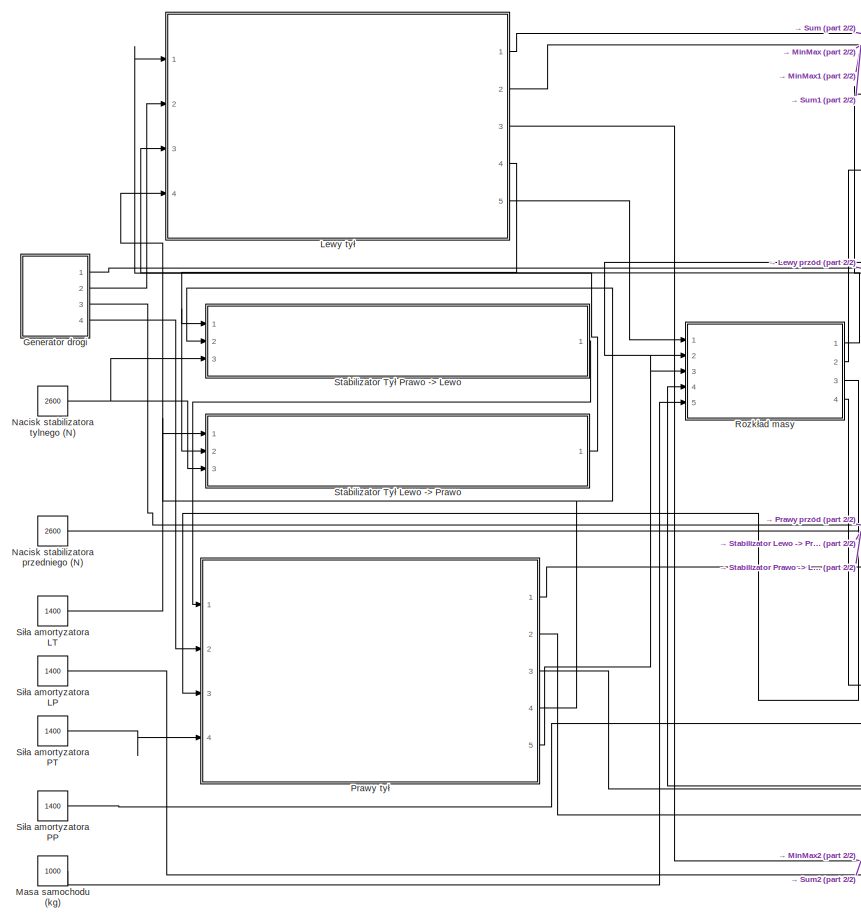
[diagram: root canvas - part 1/2, left side, full height]
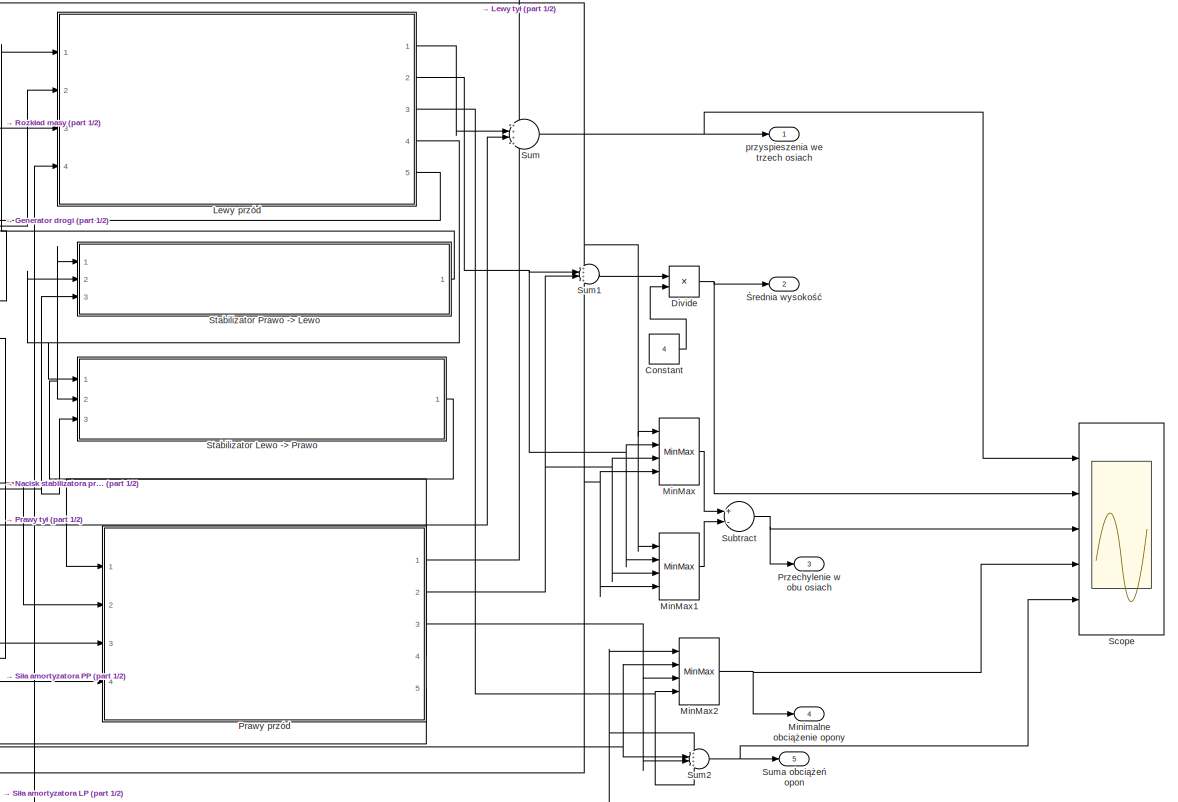
[diagram: root canvas - part 2/2, right side, full height]
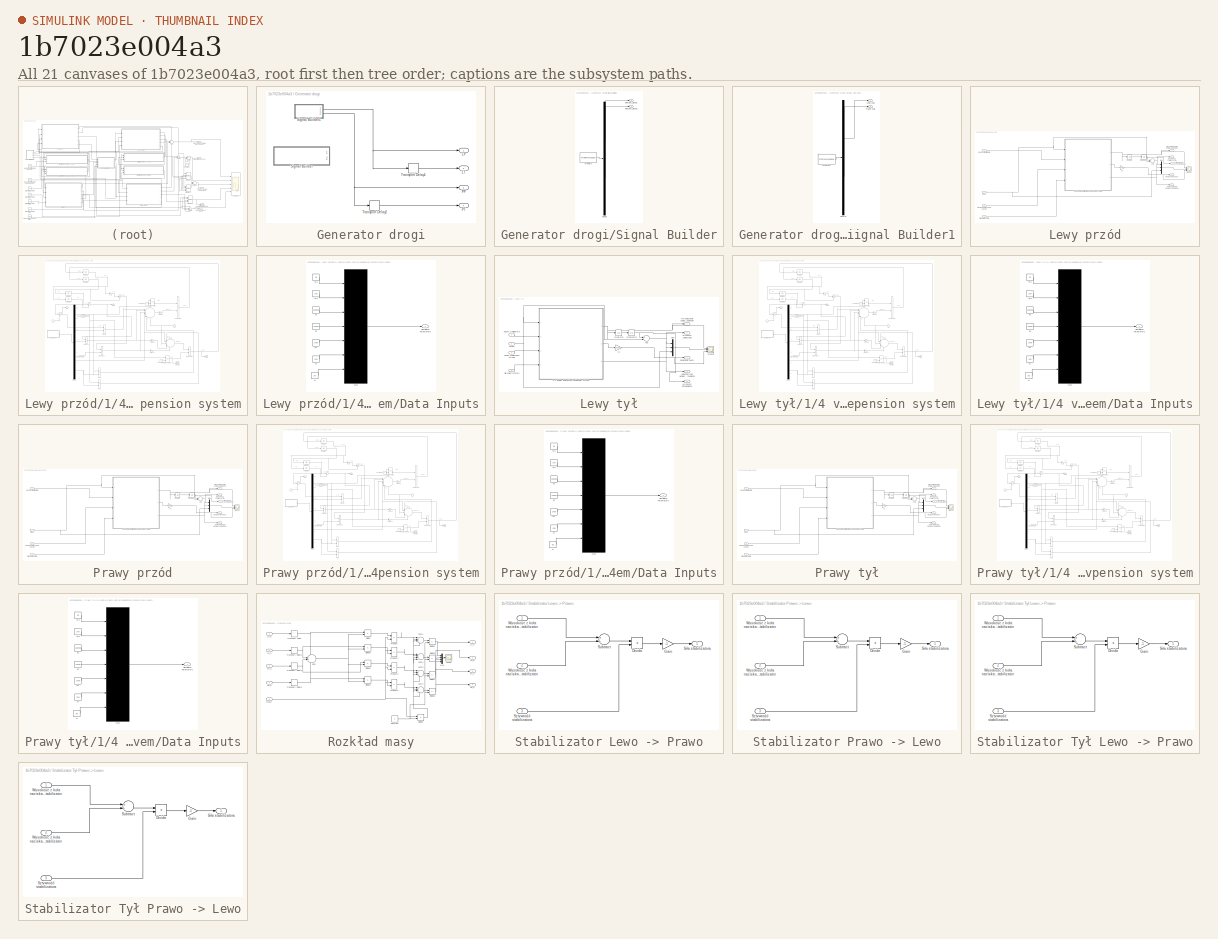
[diagram: thumbnail index - all 21 canvases of the model, root first then tree order]
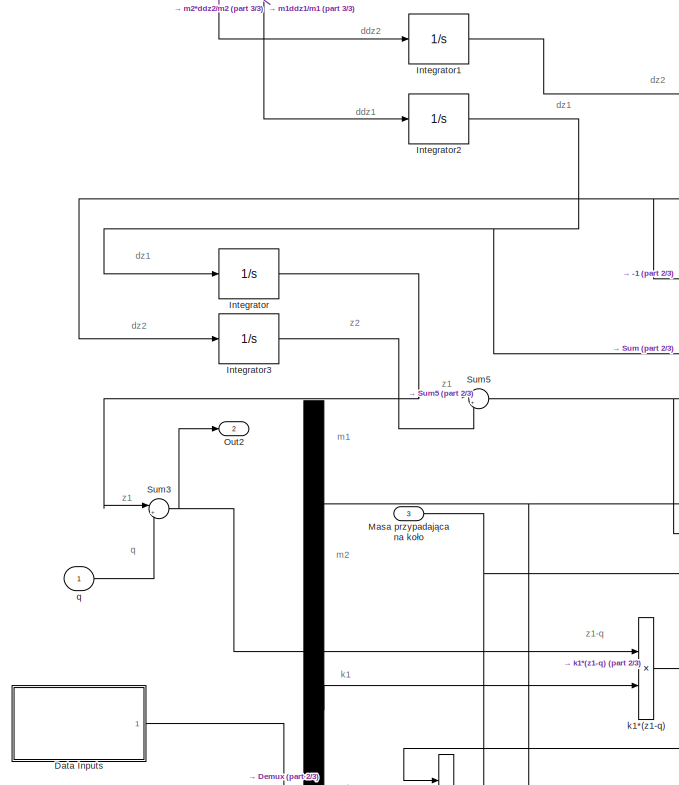
[diagram: Lewy przód/1/4 vehicle semi-active suspension system - part 1/3, middle left region]
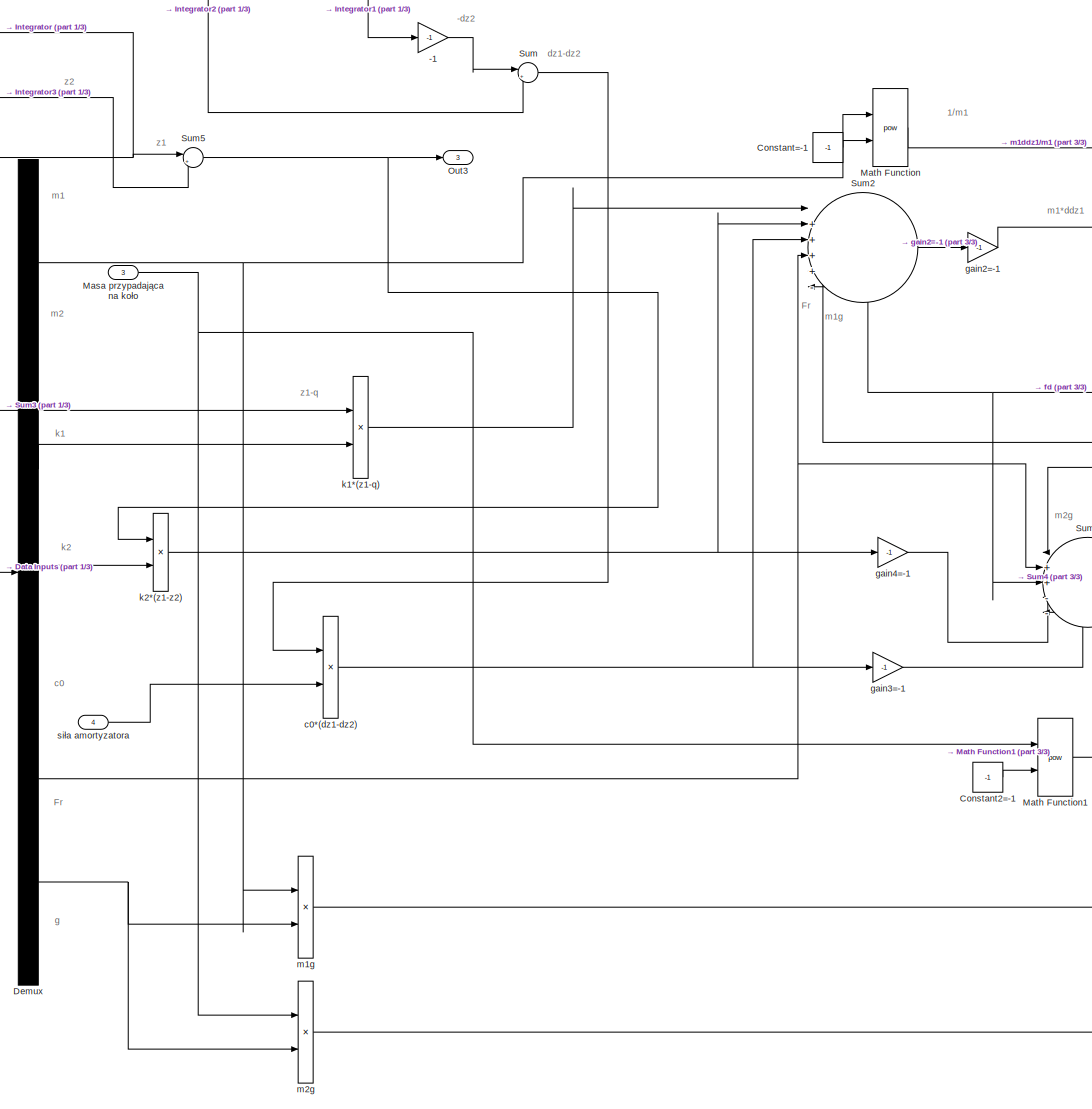
[diagram: Lewy przód/1/4 vehicle semi-active suspension system - part 2/3, center side, full height]
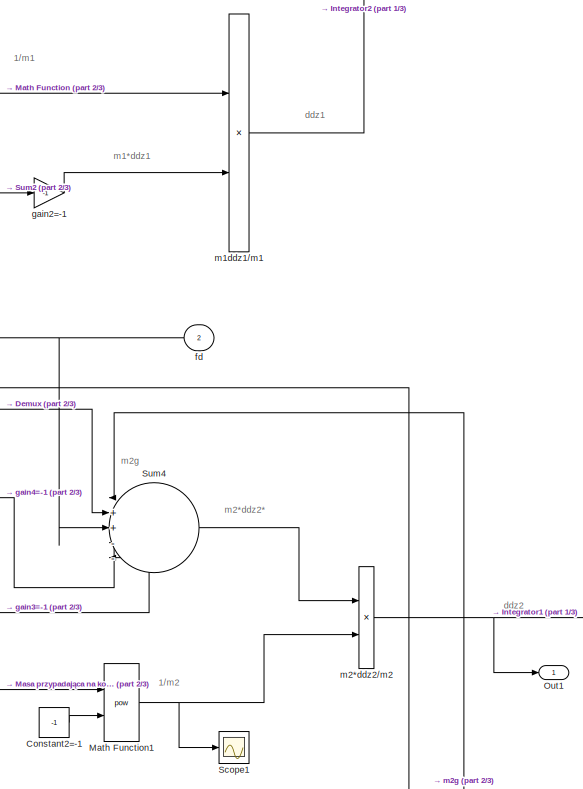
[diagram: Lewy przód/1/4 vehicle semi-active suspension system - part 3/3, middle right region]
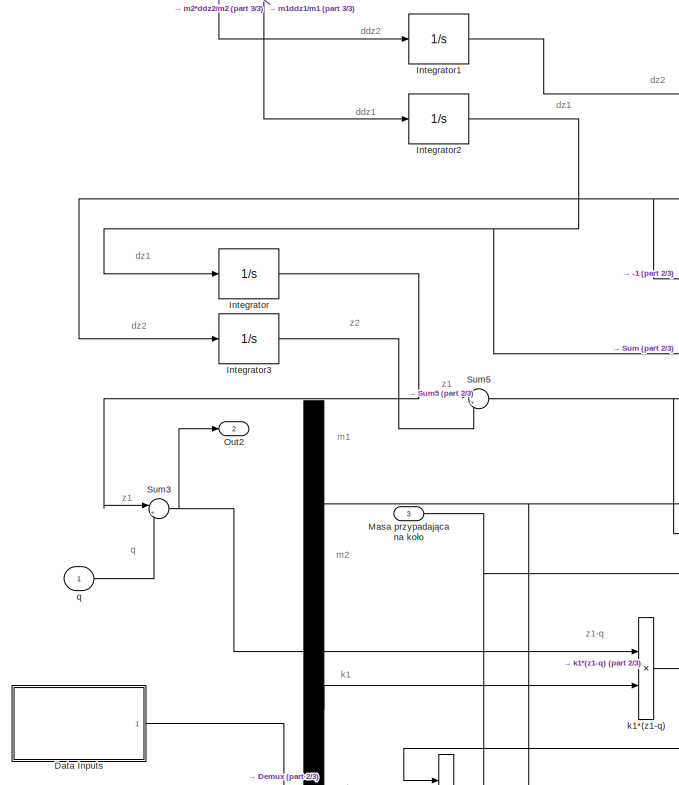
[diagram: Lewy tył/1/4 vehicle semi-active suspension system - part 1/3, middle left region]
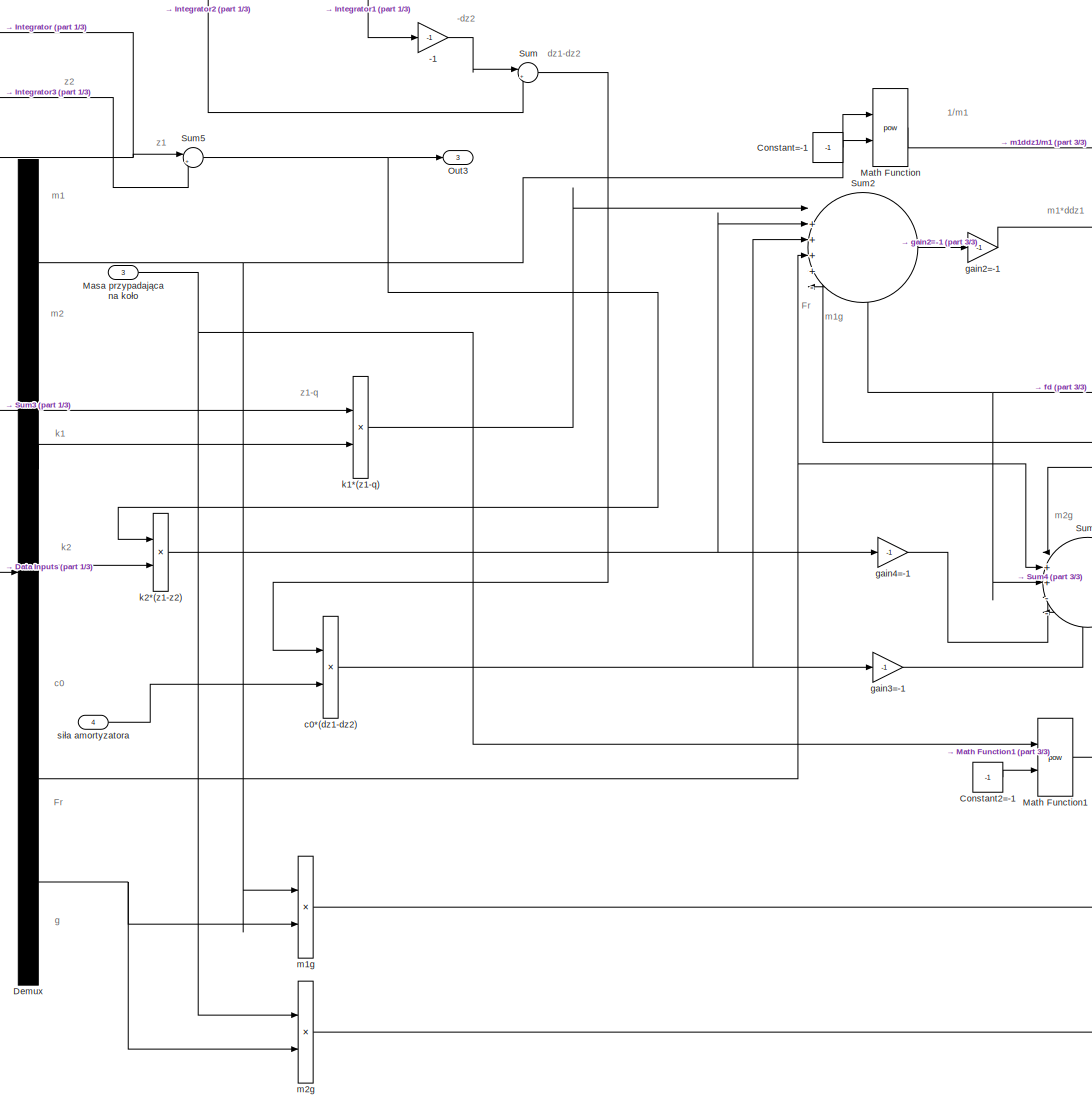
[diagram: Lewy tył/1/4 vehicle semi-active suspension system - part 2/3, center side, full height]
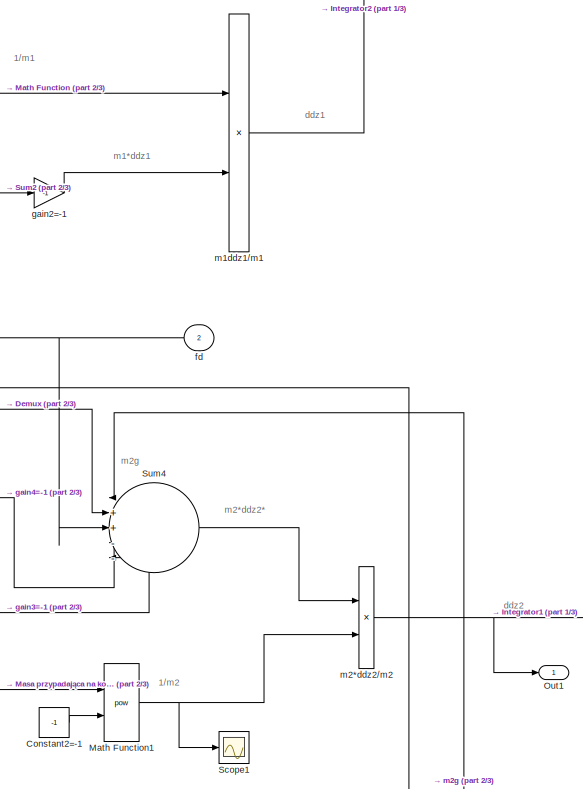
[diagram: Lewy tył/1/4 vehicle semi-active suspension system - part 3/3, middle right region]
MODEL slx_1b7023e004a3
KIND model
BLOCK [Constant] Constant
  Value = 4
BLOCK [Product] Divide
  InputSameDT = off
  Inputs = */
  OutDataTypeStr = Inherit: Inherit via internal rule
  Ports = [2, 1]
  RndMeth = Floor
  SaturateOnIntegerOverflow = off
BLOCK [SubSystem] Generator drogi
  FunctionWithSeparateData = off
  MaskHideContents = off
  MinAlgLoopOccurrences = off
  Opaque = off
  Ports = [0, 4]
  PropExecContextOutsideSubsystem = off
  RTWSystemCode = Auto
  RequestExecContextInheritance = off
BLOCK [Outport] Generator drogi/LP
  IconDisplay = Port number
BLOCK [Outport] Generator drogi/LT
  IconDisplay = Port number
  Port = 2
BLOCK [Outport] Generator drogi/PP
  IconDisplay = Port number
  Port = 3
BLOCK [Outport] Generator drogi/PT
  IconDisplay = Port number
  Port = 4
BLOCK [SubSystem] Generator drogi/Signal Builder
  ClipboardFcn = sigbuilder_block('clipboard');
  CloseFcn = sigbuilder_block('close');
  ContinueFcn = sigbuilder_block('continue')
  CopyFcn = sigbuilder_block('copy');
  DeleteFcn = sigbuilder_block('delete');
  FunctionWithSeparateData = off
  LoadFcn = sigbuilder_block('load');
  MaskHideContents = on
  MinAlgLoopOccurrences = off
  ModelCloseFcn = sigbuilder_block('modelClose');
  NameChangeFcn = sigbuilder_block('namechange');
  Opaque = off
  OpenFcn = sigbuilder_block('open',[108 122.25 550.5 390 ]);
  PauseFcn = sigbuilder_block('pause')
  Ports = [0, 2]
  PreSaveFcn = sigbuilder_block('preSave');
  PropExecContextOutsideSubsystem = off
  RTWSystemCode = Auto
  RequestExecContextInheritance = off
  StartFcn = sigbuilder_block('start');
  StopFcn = sigbuilder_block('stop');
  Tag = STV Subsys
BLOCK [Demux] Generator drogi/Signal Builder/Demux
  Outputs = 2
  Ports = [1, 2]
  Tag = STV Demux
BLOCK [FromWorkspace] Generator drogi/Signal Builder/FromWs
  SampleTime = 0
  Tag = STV FromWs
  VariableName = tuvar
  ZeroCross = on
BLOCK [Outport] Generator drogi/Signal Builder/Imported_Signal 1
  IconDisplay = Port number
BLOCK [Outport] Generator drogi/Signal Builder/Imported_Signal 2
  IconDisplay = Port number
  Port = 2
  Tag = STV Outport
BLOCK [SubSystem] Generator drogi/Signal Builder1
  ClipboardFcn = sigbuilder_block('clipboard');
  CloseFcn = sigbuilder_block('close');
  ContinueFcn = sigbuilder_block('continue');
  CopyFcn = sigbuilder_block('copy');
  DeleteFcn = sigbuilder_block('delete');
  FunctionWithSeparateData = off
  LoadFcn = sigbuilder_block('load');
  MaskHideContents = on
  MinAlgLoopOccurrences = off
  ModelCloseFcn = sigbuilder_block('modelClose');
  NameChangeFcn = sigbuilder_block('namechange');
  Opaque = off
  OpenFcn = sigbuilder_block('open',[0 30 1258.5 678.75 ]);
  PauseFcn = sigbuilder_block('pause');
  Ports = [0, 2]
  PreSaveFcn = sigbuilder_block('preSave');
  PropExecContextOutsideSubsystem = off
  RTWSystemCode = Auto
  RequestExecContextInheritance = off
  StartFcn = sigbuilder_block('start');
  StopFcn = sigbuilder_block('stop');
  Tag = STV Subsys
BLOCK [Demux] Generator drogi/Signal Builder1/Demux
  Outputs = 2
  Ports = [1, 2]
  Tag = STV Demux
BLOCK [FromWorkspace] Generator drogi/Signal Builder1/FromWs
  SampleTime = 0
  Tag = STV FromWs
  VariableName = tuvar
  ZeroCross = on
BLOCK [Outport] Generator drogi/Signal Builder1/Lewe koło
  IconDisplay = Port number
  Tag = STV Outport
BLOCK [Outport] Generator drogi/Signal Builder1/Prawe koło
  IconDisplay = Port number
  Port = 2
  Tag = STV Outport
BLOCK [TransportDelay] Generator drogi/Transport Delay1
  BufferSize = 102400
  DelayTime = 0.27
  Ports = [1, 1]
BLOCK [TransportDelay] Generator drogi/Transport Delay2
  BufferSize = 102400
  DelayTime = 0.27
  Ports = [1, 1]
BLOCK [SubSystem] Lewy przód
  FunctionWithSeparateData = off
  MaskHideContents = off
  MinAlgLoopOccurrences = off
  Opaque = off
  Ports = [4, 5]
  PropExecContextOutsideSubsystem = off
  RTWSystemCode = Auto
  RequestExecContextInheritance = off
BLOCK [SubSystem] Lewy przód/1//4 vehicle semi-active suspension system
  FunctionWithSeparateData = off
  MaskHideContents = off
  MinAlgLoopOccurrences = off
  Opaque = off
  Ports = [4, 3]
  PropExecContextOutsideSubsystem = off
  RTWSystemCode = Auto
  RequestExecContextInheritance = off
BLOCK [Gain] Lewy przód/1//4 vehicle semi-active suspension system/-1
  Gain = -1
BLOCK [Constant] Lewy przód/1//4 vehicle semi-active suspension system/Constant2=-1
  Value = -1
BLOCK [Constant] Lewy przód/1//4 vehicle semi-active suspension system/Constant=-1
  Value = -1
BLOCK [SubSystem] Lewy przód/1//4 vehicle semi-active suspension system/Data Inputs
  FunctionWithSeparateData = off
  MaskHideContents = off
  MinAlgLoopOccurrences = off
  Opaque = off
  Ports = [0, 1]
  PropExecContextOutsideSubsystem = off
  RTWSystemCode = Auto
  RequestExecContextInheritance = off
BLOCK [Constant] Lewy przód/1//4 vehicle semi-active suspension system/Data Inputs/Fr
  Value = 300
BLOCK [Mux] Lewy przód/1//4 vehicle semi-active suspension system/Data Inputs/Mux
  DisplayOption = bar
  Inputs = 7
  Ports = [7, 1]
BLOCK [Outport] Lewy przód/1//4 vehicle semi-active suspension system/Data Inputs/Simulaiton Parameters 
  IconDisplay = Port number
BLOCK [Constant] Lewy przód/1//4 vehicle semi-active suspension system/Data Inputs/c0
  Value = 1400
BLOCK [Constant] Lewy przód/1//4 vehicle semi-active suspension system/Data Inputs/g
  Value = 9.8
BLOCK [Constant] Lewy przód/1//4 vehicle semi-active suspension system/Data Inputs/k1
  Value = 160000
BLOCK [Constant] Lewy przód/1//4 vehicle semi-active suspension system/Data Inputs/k2
  Value = 16000
BLOCK [Constant] Lewy przód/1//4 vehicle semi-active suspension system/Data Inputs/m1
  Value = 36
BLOCK [Constant] Lewy przód/1//4 vehicle semi-active suspension system/Data Inputs/m2
  Value = 240
BLOCK [Demux] Lewy przód/1//4 vehicle semi-active suspension system/Demux
  Outputs = 7
  Ports = [1, 7]
BLOCK [Integrator] Lewy przód/1//4 vehicle semi-active suspension system/Integrator
  Ports = [1, 1]
BLOCK [Integrator] Lewy przód/1//4 vehicle semi-active suspension system/Integrator1
  Ports = [1, 1]
BLOCK [Integrator] Lewy przód/1//4 vehicle semi-active suspension system/Integrator2
  Ports = [1, 1]
BLOCK [Integrator] Lewy przód/1//4 vehicle semi-active suspension system/Integrator3
  Ports = [1, 1]
BLOCK [Inport] Lewy przód/1//4 vehicle semi-active suspension system/Masa przypadająca na koło
  IconDisplay = Port number
  Port = 3
BLOCK [Math] Lewy przód/1//4 vehicle semi-active suspension system/Math Function
  Operator = pow
  Ports = [2, 1]
BLOCK [Math] Lewy przód/1//4 vehicle semi-active suspension system/Math Function1
  Operator = pow
  Ports = [2, 1]
BLOCK [Outport] Lewy przód/1//4 vehicle semi-active suspension system/Out1
  IconDisplay = Port number
BLOCK [Outport] Lewy przód/1//4 vehicle semi-active suspension system/Out2
  IconDisplay = Port number
  Port = 2
BLOCK [Outport] Lewy przód/1//4 vehicle semi-active suspension system/Out3
  IconDisplay = Port number
  Port = 3
BLOCK [Scope] Lewy przód/1//4 vehicle semi-active suspension system/Scope1
  DataFormat = StructureWithTime
  Floating = off
  NumInputPorts = 1
  Ports = [1]
  SampleTime = 0
  SaveName = ScopeData4
  ShowLegends = off
BLOCK [Sum] Lewy przód/1//4 vehicle semi-active suspension system/Sum
  IconShape = round
  Inputs = |++
  Ports = [2, 1]
BLOCK [Sum] Lewy przód/1//4 vehicle semi-active suspension system/Sum2
  IconShape = round
  Inputs = |++++-+
  Ports = [6, 1]
BLOCK [Sum] Lewy przód/1//4 vehicle semi-active suspension system/Sum3
  IconShape = round
  Inputs = |+-
  Ports = [2, 1]
BLOCK [Sum] Lewy przód/1//4 vehicle semi-active suspension system/Sum4
  IconShape = round
  Inputs = |++---
  Ports = [5, 1]
BLOCK [Sum] Lewy przód/1//4 vehicle semi-active suspension system/Sum5
  IconShape = round
  Inputs = |+-
  Ports = [2, 1]
BLOCK [Product] Lewy przód/1//4 vehicle semi-active suspension system/c0*(dz1-dz2)
  Ports = [2, 1]
BLOCK [Inport] Lewy przód/1//4 vehicle semi-active suspension system/fd
  IconDisplay = Port number
  Port = 2
BLOCK [Gain] Lewy przód/1//4 vehicle semi-active suspension system/gain2=-1
  Gain = -1
BLOCK [Gain] Lewy przód/1//4 vehicle semi-active suspension system/gain3=-1
  Gain = -1
BLOCK [Gain] Lewy przód/1//4 vehicle semi-active suspension system/gain4=-1
  Gain = -1
BLOCK [Product] Lewy przód/1//4 vehicle semi-active suspension system/k1*(z1-q)
  Ports = [2, 1]
BLOCK [Product] Lewy przód/1//4 vehicle semi-active suspension system/k2*(z1-z2)
  Ports = [2, 1]
BLOCK [Product] Lewy przód/1//4 vehicle semi-active suspension system/m1ddz1//m1
  Ports = [2, 1]
BLOCK [Product] Lewy przód/1//4 vehicle semi-active suspension system/m1g
  Ports = [2, 1]
BLOCK [Product] Lewy przód/1//4 vehicle semi-active suspension system/m2*ddz2//m2
  Ports = [2, 1]
BLOCK [Product] Lewy przód/1//4 vehicle semi-active suspension system/m2g
  Ports = [2, 1]
BLOCK [Inport] Lewy przód/1//4 vehicle semi-active suspension system/q
  IconDisplay = Port number
BLOCK [Inport] Lewy przód/1//4 vehicle semi-active suspension system/siła amortyzatora
  IconDisplay = Port number
  Port = 4
BLOCK [Sum] Lewy przód/Add
  InputSameDT = off
  Inputs = +-
  OutDataTypeStr = Inherit: Inherit via internal rule
  Ports = [2, 1]
  SaturateOnIntegerOverflow = off
BLOCK [Inport] Lewy przód/Droga
  IconDisplay = Port number
  Port = 2
BLOCK [Integrator] Lewy przód/Integrator
  Ports = [1, 1]
BLOCK [Integrator] Lewy przód/Integrator1
  Ports = [1, 1]
BLOCK [Mux] Lewy przód/Mux
  DisplayOption = bar
  Inputs = 3
  Ports = [3, 1]
BLOCK [Inport] Lewy przód/Nacisk samochodu na koło
  IconDisplay = Port number
  Port = 3
BLOCK [Inport] Lewy przód/Nacisk stabilizatora
  IconDisplay = Port number
BLOCK [Outport] Lewy przód/Obciążenie opony
  IconDisplay = Port number
  Port = 3
BLOCK [Outport] Lewy przód/Położenie koła względem nadwozia
  IconDisplay = Port number
  Port = 4
BLOCK [Outport] Lewy przód/Przyspieszenie działające na nadwodzie
  IconDisplay = Port number
BLOCK [Inport] Lewy przód/Siła amortyzatora
  IconDisplay = Port number
  Port = 4
BLOCK [Scope] Lewy przód/Wyjście
  DataFormat = StructureWithTime
  Floating = off
  NumInputPorts = 3
  Ports = [3]
  SampleTime = 0
  SaveName = ScopeData3
  ShowLegends = off
  YMax = 40~0.4~20000
  YMin = -40~-0.4~-20000
  ZoomMode = xonly
BLOCK [Outport] Lewy przód/Wysokość bezwzględna 
  IconDisplay = Port number
  Port = 5
BLOCK [Outport] Lewy przód/Wysokość zawieszenia
  IconDisplay = Port number
  Port = 2
BLOCK [Gain] Lewy przód/k1
  Gain = 160000
BLOCK [SubSystem] Lewy tył
  FunctionWithSeparateData = off
  MaskHideContents = off
  MinAlgLoopOccurrences = off
  Opaque = off
  Ports = [4, 5]
  PropExecContextOutsideSubsystem = off
  RTWSystemCode = Auto
  RequestExecContextInheritance = off
BLOCK [SubSystem] Lewy tył/1//4 vehicle semi-active suspension system
  FunctionWithSeparateData = off
  MaskHideContents = off
  MinAlgLoopOccurrences = off
  Opaque = off
  Ports = [4, 3]
  PropExecContextOutsideSubsystem = off
  RTWSystemCode = Auto
  RequestExecContextInheritance = off
BLOCK [Gain] Lewy tył/1//4 vehicle semi-active suspension system/-1
  Gain = -1
BLOCK [Constant] Lewy tył/1//4 vehicle semi-active suspension system/Constant2=-1
  Value = -1
BLOCK [Constant] Lewy tył/1//4 vehicle semi-active suspension system/Constant=-1
  Value = -1
BLOCK [SubSystem] Lewy tył/1//4 vehicle semi-active suspension system/Data Inputs
  FunctionWithSeparateData = off
  MaskHideContents = off
  MinAlgLoopOccurrences = off
  Opaque = off
  Ports = [0, 1]
  PropExecContextOutsideSubsystem = off
  RTWSystemCode = Auto
  RequestExecContextInheritance = off
BLOCK [Constant] Lewy tył/1//4 vehicle semi-active suspension system/Data Inputs/Fr
  Value = 300
BLOCK [Mux] Lewy tył/1//4 vehicle semi-active suspension system/Data Inputs/Mux
  DisplayOption = bar
  Inputs = 7
  Ports = [7, 1]
BLOCK [Outport] Lewy tył/1//4 vehicle semi-active suspension system/Data Inputs/Simulaiton Parameters 
  IconDisplay = Port number
BLOCK [Constant] Lewy tył/1//4 vehicle semi-active suspension system/Data Inputs/c0
  Value = 1400
BLOCK [Constant] Lewy tył/1//4 vehicle semi-active suspension system/Data Inputs/g
  Value = 9.8
BLOCK [Constant] Lewy tył/1//4 vehicle semi-active suspension system/Data Inputs/k1
  Value = 160000
BLOCK [Constant] Lewy tył/1//4 vehicle semi-active suspension system/Data Inputs/k2
  Value = 16000
BLOCK [Constant] Lewy tył/1//4 vehicle semi-active suspension system/Data Inputs/m1
  Value = 36
BLOCK [Constant] Lewy tył/1//4 vehicle semi-active suspension system/Data Inputs/m2
  Value = 240
BLOCK [Demux] Lewy tył/1//4 vehicle semi-active suspension system/Demux
  Outputs = 7
  Ports = [1, 7]
BLOCK [Integrator] Lewy tył/1//4 vehicle semi-active suspension system/Integrator
  Ports = [1, 1]
BLOCK [Integrator] Lewy tył/1//4 vehicle semi-active suspension system/Integrator1
  Ports = [1, 1]
BLOCK [Integrator] Lewy tył/1//4 vehicle semi-active suspension system/Integrator2
  Ports = [1, 1]
BLOCK [Integrator] Lewy tył/1//4 vehicle semi-active suspension system/Integrator3
  Ports = [1, 1]
BLOCK [Inport] Lewy tył/1//4 vehicle semi-active suspension system/Masa przypadająca na koło
  IconDisplay = Port number
  Port = 3
BLOCK [Math] Lewy tył/1//4 vehicle semi-active suspension system/Math Function
  Operator = pow
  Ports = [2, 1]
BLOCK [Math] Lewy tył/1//4 vehicle semi-active suspension system/Math Function1
  Operator = pow
  Ports = [2, 1]
BLOCK [Outport] Lewy tył/1//4 vehicle semi-active suspension system/Out1
  IconDisplay = Port number
BLOCK [Outport] Lewy tył/1//4 vehicle semi-active suspension system/Out2
  IconDisplay = Port number
  Port = 2
BLOCK [Outport] Lewy tył/1//4 vehicle semi-active suspension system/Out3
  IconDisplay = Port number
  Port = 3
BLOCK [Scope] Lewy tył/1//4 vehicle semi-active suspension system/Scope1
  DataFormat = StructureWithTime
  Floating = off
  NumInputPorts = 1
  Ports = [1]
  SampleTime = 0
  SaveName = ScopeData4
  ShowLegends = off
BLOCK [Sum] Lewy tył/1//4 vehicle semi-active suspension system/Sum
  IconShape = round
  Inputs = |++
  Ports = [2, 1]
BLOCK [Sum] Lewy tył/1//4 vehicle semi-active suspension system/Sum2
  IconShape = round
  Inputs = |++++-+
  Ports = [6, 1]
BLOCK [Sum] Lewy tył/1//4 vehicle semi-active suspension system/Sum3
  IconShape = round
  Inputs = |+-
  Ports = [2, 1]
BLOCK [Sum] Lewy tył/1//4 vehicle semi-active suspension system/Sum4
  IconShape = round
  Inputs = |++---
  Ports = [5, 1]
BLOCK [Sum] Lewy tył/1//4 vehicle semi-active suspension system/Sum5
  IconShape = round
  Inputs = |+-
  Ports = [2, 1]
BLOCK [Product] Lewy tył/1//4 vehicle semi-active suspension system/c0*(dz1-dz2)
  Ports = [2, 1]
BLOCK [Inport] Lewy tył/1//4 vehicle semi-active suspension system/fd
  IconDisplay = Port number
  Port = 2
BLOCK [Gain] Lewy tył/1//4 vehicle semi-active suspension system/gain2=-1
  Gain = -1
BLOCK [Gain] Lewy tył/1//4 vehicle semi-active suspension system/gain3=-1
  Gain = -1
BLOCK [Gain] Lewy tył/1//4 vehicle semi-active suspension system/gain4=-1
  Gain = -1
BLOCK [Product] Lewy tył/1//4 vehicle semi-active suspension system/k1*(z1-q)
  Ports = [2, 1]
BLOCK [Product] Lewy tył/1//4 vehicle semi-active suspension system/k2*(z1-z2)
  Ports = [2, 1]
BLOCK [Product] Lewy tył/1//4 vehicle semi-active suspension system/m1ddz1//m1
  Ports = [2, 1]
BLOCK [Product] Lewy tył/1//4 vehicle semi-active suspension system/m1g
  Ports = [2, 1]
BLOCK [Product] Lewy tył/1//4 vehicle semi-active suspension system/m2*ddz2//m2
  Ports = [2, 1]
BLOCK [Product] Lewy tył/1//4 vehicle semi-active suspension system/m2g
  Ports = [2, 1]
BLOCK [Inport] Lewy tył/1//4 vehicle semi-active suspension system/q
  IconDisplay = Port number
BLOCK [Inport] Lewy tył/1//4 vehicle semi-active suspension system/siła amortyzatora
  IconDisplay = Port number
  Port = 4
BLOCK [Sum] Lewy tył/Add
  InputSameDT = off
  Inputs = +-
  OutDataTypeStr = Inherit: Inherit via internal rule
  Ports = [2, 1]
  SaturateOnIntegerOverflow = off
BLOCK [Inport] Lewy tył/Droga
  IconDisplay = Port number
  Port = 2
BLOCK [Integrator] Lewy tył/Integrator
  Ports = [1, 1]
BLOCK [Integrator] Lewy tył/Integrator1
  Ports = [1, 1]
BLOCK [Mux] Lewy tył/Mux
  DisplayOption = bar
  Inputs = 3
  Ports = [3, 1]
BLOCK [Inport] Lewy tył/Nacisk samochodu na koło
  IconDisplay = Port number
  Port = 3
BLOCK [Inport] Lewy tył/Nacisk stabilizatora
  IconDisplay = Port number
BLOCK [Outport] Lewy tył/Obciążenie opony
  IconDisplay = Port number
  Port = 3
BLOCK [Outport] Lewy tył/Położenie koła względem nadwozia
  IconDisplay = Port number
  Port = 4
BLOCK [Outport] Lewy tył/Przyspieszenie działające na nadwodzie
  IconDisplay = Port number
BLOCK [Inport] Lewy tył/Siła amortyzatora
  IconDisplay = Port number
  Port = 4
BLOCK [Scope] Lewy tył/Wyjście
  DataFormat = StructureWithTime
  Floating = off
  NumInputPorts = 3
  Ports = [3]
  SampleTime = 0
  ShowLegends = off
  YMax = 40~0.4~20000
  YMin = -40~-0.4~-20000
  ZoomMode = xonly
BLOCK [Outport] Lewy tył/Wysokość bezwzględna 
  IconDisplay = Port number
  Port = 5
BLOCK [Outport] Lewy tył/Wysokość zawieszenia
  IconDisplay = Port number
  Port = 2
BLOCK [Gain] Lewy tył/k1
  Gain = 160000
BLOCK [Constant] Masa samochodu (kg)
  Value = 1000
BLOCK [MinMax] MinMax
  Function = max
  InputSameDT = off
  Inputs = 4
  Ports = [4, 1]
  SaturateOnIntegerOverflow = off
BLOCK [MinMax] MinMax1
  InputSameDT = off
  Inputs = 4
  Ports = [4, 1]
  SaturateOnIntegerOverflow = off
BLOCK [MinMax] MinMax2
  InputSameDT = off
  Inputs = 4
  Ports = [4, 1]
  SaturateOnIntegerOverflow = off
BLOCK [Outport] Minimalne obciążenie opony
  IconDisplay = Port number
  Port = 4
BLOCK [Constant] Nacisk stabilizatora przedniego (N)
  Value = 2600
BLOCK [Constant] Nacisk stabilizatora tylnego (N)
  Value = 2600
BLOCK [SubSystem] Prawy przód
  FunctionWithSeparateData = off
  MaskHideContents = off
  MinAlgLoopOccurrences = off
  Opaque = off
  Ports = [4, 5]
  PropExecContextOutsideSubsystem = off
  RTWSystemCode = Auto
  RequestExecContextInheritance = off
BLOCK [SubSystem] Prawy przód/1//4 vehicle semi-active suspension system
  FunctionWithSeparateData = off
  MaskHideContents = off
  MinAlgLoopOccurrences = off
  Opaque = off
  Ports = [4, 3]
  PropExecContextOutsideSubsystem = off
  RTWSystemCode = Auto
  RequestExecContextInheritance = off
BLOCK [Gain] Prawy przód/1//4 vehicle semi-active suspension system/-1
  Gain = -1
BLOCK [Constant] Prawy przód/1//4 vehicle semi-active suspension system/Constant2=-1
  Value = -1
BLOCK [Constant] Prawy przód/1//4 vehicle semi-active suspension system/Constant=-1
  Value = -1
BLOCK [SubSystem] Prawy przód/1//4 vehicle semi-active suspension system/Data Inputs
  FunctionWithSeparateData = off
  MaskHideContents = off
  MinAlgLoopOccurrences = off
  Opaque = off
  Ports = [0, 1]
  PropExecContextOutsideSubsystem = off
  RTWSystemCode = Auto
  RequestExecContextInheritance = off
BLOCK [Constant] Prawy przód/1//4 vehicle semi-active suspension system/Data Inputs/Fr
  Value = 300
BLOCK [Mux] Prawy przód/1//4 vehicle semi-active suspension system/Data Inputs/Mux
  DisplayOption = bar
  Inputs = 7
  Ports = [7, 1]
BLOCK [Outport] Prawy przód/1//4 vehicle semi-active suspension system/Data Inputs/Simulaiton Parameters 
  IconDisplay = Port number
BLOCK [Constant] Prawy przód/1//4 vehicle semi-active suspension system/Data Inputs/c0
  Value = 1400
BLOCK [Constant] Prawy przód/1//4 vehicle semi-active suspension system/Data Inputs/g
  Value = 9.8
BLOCK [Constant] Prawy przód/1//4 vehicle semi-active suspension system/Data Inputs/k1
  Value = 160000
BLOCK [Constant] Prawy przód/1//4 vehicle semi-active suspension system/Data Inputs/k2
  Value = 16000
BLOCK [Constant] Prawy przód/1//4 vehicle semi-active suspension system/Data Inputs/m1
  Value = 36
BLOCK [Constant] Prawy przód/1//4 vehicle semi-active suspension system/Data Inputs/m2
  Value = 240
BLOCK [Demux] Prawy przód/1//4 vehicle semi-active suspension system/Demux
  Outputs = 7
  Ports = [1, 7]
BLOCK [Integrator] Prawy przód/1//4 vehicle semi-active suspension system/Integrator
  Ports = [1, 1]
BLOCK [Integrator] Prawy przód/1//4 vehicle semi-active suspension system/Integrator1
  Ports = [1, 1]
BLOCK [Integrator] Prawy przód/1//4 vehicle semi-active suspension system/Integrator2
  Ports = [1, 1]
BLOCK [Integrator] Prawy przód/1//4 vehicle semi-active suspension system/Integrator3
  Ports = [1, 1]
BLOCK [Inport] Prawy przód/1//4 vehicle semi-active suspension system/Masa przypadająca na koło
  IconDisplay = Port number
  Port = 3
BLOCK [Math] Prawy przód/1//4 vehicle semi-active suspension system/Math Function
  Operator = pow
  Ports = [2, 1]
BLOCK [Math] Prawy przód/1//4 vehicle semi-active suspension system/Math Function1
  Operator = pow
  Ports = [2, 1]
BLOCK [Outport] Prawy przód/1//4 vehicle semi-active suspension system/Out1
  IconDisplay = Port number
BLOCK [Outport] Prawy przód/1//4 vehicle semi-active suspension system/Out2
  IconDisplay = Port number
  Port = 2
BLOCK [Outport] Prawy przód/1//4 vehicle semi-active suspension system/Out3
  IconDisplay = Port number
  Port = 3
BLOCK [Scope] Prawy przód/1//4 vehicle semi-active suspension system/Scope1
  DataFormat = StructureWithTime
  Floating = off
  NumInputPorts = 1
  Ports = [1]
  SampleTime = 0
  SaveName = ScopeData4
  ShowLegends = off
BLOCK [Sum] Prawy przód/1//4 vehicle semi-active suspension system/Sum
  IconShape = round
  Inputs = |++
  Ports = [2, 1]
BLOCK [Sum] Prawy przód/1//4 vehicle semi-active suspension system/Sum2
  IconShape = round
  Inputs = |++++-+
  Ports = [6, 1]
BLOCK [Sum] Prawy przód/1//4 vehicle semi-active suspension system/Sum3
  IconShape = round
  Inputs = |+-
  Ports = [2, 1]
BLOCK [Sum] Prawy przód/1//4 vehicle semi-active suspension system/Sum4
  IconShape = round
  Inputs = |++---
  Ports = [5, 1]
BLOCK [Sum] Prawy przód/1//4 vehicle semi-active suspension system/Sum5
  IconShape = round
  Inputs = |+-
  Ports = [2, 1]
BLOCK [Product] Prawy przód/1//4 vehicle semi-active suspension system/c0*(dz1-dz2)
  Ports = [2, 1]
BLOCK [Inport] Prawy przód/1//4 vehicle semi-active suspension system/fd
  IconDisplay = Port number
  Port = 2
BLOCK [Gain] Prawy przód/1//4 vehicle semi-active suspension system/gain2=-1
  Gain = -1
BLOCK [Gain] Prawy przód/1//4 vehicle semi-active suspension system/gain3=-1
  Gain = -1
BLOCK [Gain] Prawy przód/1//4 vehicle semi-active suspension system/gain4=-1
  Gain = -1
BLOCK [Product] Prawy przód/1//4 vehicle semi-active suspension system/k1*(z1-q)
  Ports = [2, 1]
BLOCK [Product] Prawy przód/1//4 vehicle semi-active suspension system/k2*(z1-z2)
  Ports = [2, 1]
BLOCK [Product] Prawy przód/1//4 vehicle semi-active suspension system/m1ddz1//m1
  Ports = [2, 1]
BLOCK [Product] Prawy przód/1//4 vehicle semi-active suspension system/m1g
  Ports = [2, 1]
BLOCK [Product] Prawy przód/1//4 vehicle semi-active suspension system/m2*ddz2//m2
  Ports = [2, 1]
BLOCK [Product] Prawy przód/1//4 vehicle semi-active suspension system/m2g
  Ports = [2, 1]
BLOCK [Inport] Prawy przód/1//4 vehicle semi-active suspension system/q
  IconDisplay = Port number
BLOCK [Inport] Prawy przód/1//4 vehicle semi-active suspension system/siła amortyzatora
  IconDisplay = Port number
  Port = 4
BLOCK [Sum] Prawy przód/Add
  InputSameDT = off
  Inputs = +-
  OutDataTypeStr = Inherit: Inherit via internal rule
  Ports = [2, 1]
  SaturateOnIntegerOverflow = off
BLOCK [Inport] Prawy przód/Droga
  IconDisplay = Port number
  Port = 2
BLOCK [Integrator] Prawy przód/Integrator
  Ports = [1, 1]
BLOCK [Integrator] Prawy przód/Integrator1
  Ports = [1, 1]
BLOCK [Mux] Prawy przód/Mux
  DisplayOption = bar
  Inputs = 3
  Ports = [3, 1]
BLOCK [Inport] Prawy przód/Nacisk samochodu na koło
  IconDisplay = Port number
  Port = 3
BLOCK [Inport] Prawy przód/Nacisk stabilizatora
  IconDisplay = Port number
BLOCK [Outport] Prawy przód/Obciążenie opony
  IconDisplay = Port number
  Port = 3
BLOCK [Outport] Prawy przód/Położenie koła względem nadwozia
  IconDisplay = Port number
  Port = 4
BLOCK [Outport] Prawy przód/Przyspieszenie działające na nadwodzie
  IconDisplay = Port number
BLOCK [Inport] Prawy przód/Siła amortyzatora
  IconDisplay = Port number
  Port = 4
BLOCK [Scope] Prawy przód/Wyjście
  DataFormat = StructureWithTime
  Floating = off
  NumInputPorts = 3
  Ports = [3]
  SampleTime = 0
  SaveName = ScopeData5
  ShowLegends = off
  YMax = 40~0.4~20000
  YMin = -40~-0.4~-20000
  ZoomMode = yonly
BLOCK [Outport] Prawy przód/Wysokość bezwzględna 
  IconDisplay = Port number
  Port = 5
BLOCK [Outport] Prawy przód/Wysokość zawieszenia
  IconDisplay = Port number
  Port = 2
BLOCK [Gain] Prawy przód/k1
  Gain = 160000
BLOCK [SubSystem] Prawy tył
  FunctionWithSeparateData = off
  MaskHideContents = off
  MinAlgLoopOccurrences = off
  Opaque = off
  Ports = [4, 5]
  PropExecContextOutsideSubsystem = off
  RTWSystemCode = Auto
  RequestExecContextInheritance = off
BLOCK [SubSystem] Prawy tył/1//4 vehicle semi-active suspension system
  FunctionWithSeparateData = off
  MaskHideContents = off
  MinAlgLoopOccurrences = off
  Opaque = off
  Ports = [4, 3]
  PropExecContextOutsideSubsystem = off
  RTWSystemCode = Auto
  RequestExecContextInheritance = off
BLOCK [Gain] Prawy tył/1//4 vehicle semi-active suspension system/-1
  Gain = -1
BLOCK [Constant] Prawy tył/1//4 vehicle semi-active suspension system/Constant2=-1
  Value = -1
BLOCK [Constant] Prawy tył/1//4 vehicle semi-active suspension system/Constant=-1
  Value = -1
BLOCK [SubSystem] Prawy tył/1//4 vehicle semi-active suspension system/Data Inputs
  FunctionWithSeparateData = off
  MaskHideContents = off
  MinAlgLoopOccurrences = off
  Opaque = off
  Ports = [0, 1]
  PropExecContextOutsideSubsystem = off
  RTWSystemCode = Auto
  RequestExecContextInheritance = off
BLOCK [Constant] Prawy tył/1//4 vehicle semi-active suspension system/Data Inputs/Fr
  Value = 300
BLOCK [Mux] Prawy tył/1//4 vehicle semi-active suspension system/Data Inputs/Mux
  DisplayOption = bar
  Inputs = 7
  Ports = [7, 1]
BLOCK [Outport] Prawy tył/1//4 vehicle semi-active suspension system/Data Inputs/Simulaiton Parameters 
  IconDisplay = Port number
BLOCK [Constant] Prawy tył/1//4 vehicle semi-active suspension system/Data Inputs/c0
  Value = 1400
BLOCK [Constant] Prawy tył/1//4 vehicle semi-active suspension system/Data Inputs/g
  Value = 9.8
BLOCK [Constant] Prawy tył/1//4 vehicle semi-active suspension system/Data Inputs/k1
  Value = 160000
BLOCK [Constant] Prawy tył/1//4 vehicle semi-active suspension system/Data Inputs/k2
  Value = 16000
BLOCK [Constant] Prawy tył/1//4 vehicle semi-active suspension system/Data Inputs/m1
  Value = 36
BLOCK [Constant] Prawy tył/1//4 vehicle semi-active suspension system/Data Inputs/m2
  Value = 240
BLOCK [Demux] Prawy tył/1//4 vehicle semi-active suspension system/Demux
  Outputs = 7
  Ports = [1, 7]
BLOCK [Integrator] Prawy tył/1//4 vehicle semi-active suspension system/Integrator
  Ports = [1, 1]
BLOCK [Integrator] Prawy tył/1//4 vehicle semi-active suspension system/Integrator1
  Ports = [1, 1]
BLOCK [Integrator] Prawy tył/1//4 vehicle semi-active suspension system/Integrator2
  Ports = [1, 1]
BLOCK [Integrator] Prawy tył/1//4 vehicle semi-active suspension system/Integrator3
  Ports = [1, 1]
BLOCK [Inport] Prawy tył/1//4 vehicle semi-active suspension system/Masa przypadająca na koło
  IconDisplay = Port number
  Port = 3
BLOCK [Math] Prawy tył/1//4 vehicle semi-active suspension system/Math Function
  Operator = pow
  Ports = [2, 1]
BLOCK [Math] Prawy tył/1//4 vehicle semi-active suspension system/Math Function1
  Operator = pow
  Ports = [2, 1]
BLOCK [Outport] Prawy tył/1//4 vehicle semi-active suspension system/Out1
  IconDisplay = Port number
BLOCK [Outport] Prawy tył/1//4 vehicle semi-active suspension system/Out2
  IconDisplay = Port number
  Port = 2
BLOCK [Outport] Prawy tył/1//4 vehicle semi-active suspension system/Out3
  IconDisplay = Port number
  Port = 3
BLOCK [Scope] Prawy tył/1//4 vehicle semi-active suspension system/Scope1
  DataFormat = StructureWithTime
  Floating = off
  NumInputPorts = 1
  Ports = [1]
  SampleTime = 0
  SaveName = ScopeData4
  ShowLegends = off
BLOCK [Sum] Prawy tył/1//4 vehicle semi-active suspension system/Sum
  IconShape = round
  Inputs = |++
  Ports = [2, 1]
BLOCK [Sum] Prawy tył/1//4 vehicle semi-active suspension system/Sum2
  IconShape = round
  Inputs = |++++-+
  Ports = [6, 1]
BLOCK [Sum] Prawy tył/1//4 vehicle semi-active suspension system/Sum3
  IconShape = round
  Inputs = |+-
  Ports = [2, 1]
BLOCK [Sum] Prawy tył/1//4 vehicle semi-active suspension system/Sum4
  IconShape = round
  Inputs = |++---
  Ports = [5, 1]
BLOCK [Sum] Prawy tył/1//4 vehicle semi-active suspension system/Sum5
  IconShape = round
  Inputs = |+-
  Ports = [2, 1]
BLOCK [Product] Prawy tył/1//4 vehicle semi-active suspension system/c0*(dz1-dz2)
  Ports = [2, 1]
BLOCK [Inport] Prawy tył/1//4 vehicle semi-active suspension system/fd
  IconDisplay = Port number
  Port = 2
BLOCK [Gain] Prawy tył/1//4 vehicle semi-active suspension system/gain2=-1
  Gain = -1
BLOCK [Gain] Prawy tył/1//4 vehicle semi-active suspension system/gain3=-1
  Gain = -1
BLOCK [Gain] Prawy tył/1//4 vehicle semi-active suspension system/gain4=-1
  Gain = -1
BLOCK [Product] Prawy tył/1//4 vehicle semi-active suspension system/k1*(z1-q)
  Ports = [2, 1]
BLOCK [Product] Prawy tył/1//4 vehicle semi-active suspension system/k2*(z1-z2)
  Ports = [2, 1]
BLOCK [Product] Prawy tył/1//4 vehicle semi-active suspension system/m1ddz1//m1
  Ports = [2, 1]
BLOCK [Product] Prawy tył/1//4 vehicle semi-active suspension system/m1g
  Ports = [2, 1]
BLOCK [Product] Prawy tył/1//4 vehicle semi-active suspension system/m2*ddz2//m2
  Ports = [2, 1]
BLOCK [Product] Prawy tył/1//4 vehicle semi-active suspension system/m2g
  Ports = [2, 1]
BLOCK [Inport] Prawy tył/1//4 vehicle semi-active suspension system/q
  IconDisplay = Port number
BLOCK [Inport] Prawy tył/1//4 vehicle semi-active suspension system/siła amortyzatora
  IconDisplay = Port number
  Port = 4
BLOCK [Sum] Prawy tył/Add
  InputSameDT = off
  Inputs = +-
  OutDataTypeStr = Inherit: Inherit via internal rule
  Ports = [2, 1]
  SaturateOnIntegerOverflow = off
BLOCK [Inport] Prawy tył/Droga
  IconDisplay = Port number
  Port = 2
BLOCK [Integrator] Prawy tył/Integrator
  Ports = [1, 1]
BLOCK [Integrator] Prawy tył/Integrator1
  Ports = [1, 1]
BLOCK [Mux] Prawy tył/Mux
  DisplayOption = bar
  Inputs = 3
  Ports = [3, 1]
BLOCK [Inport] Prawy tył/Nacisk samochodu na koło
  IconDisplay = Port number
  Port = 3
BLOCK [Inport] Prawy tył/Nacisk stabilizatora
  IconDisplay = Port number
BLOCK [Outport] Prawy tył/Obciążenie opony
  IconDisplay = Port number
  Port = 3
BLOCK [Outport] Prawy tył/Położenie koła względem nadwozia
  IconDisplay = Port number
  Port = 4
BLOCK [Outport] Prawy tył/Przyspieszenie działające na nadwodzie
  IconDisplay = Port number
BLOCK [Inport] Prawy tył/Siła amortyzatora
  IconDisplay = Port number
  Port = 4
BLOCK [Scope] Prawy tył/Wyjście
  DataFormat = StructureWithTime
  Floating = off
  NumInputPorts = 3
  Ports = [3]
  SampleTime = 0
  SaveName = ScopeData2
  ShowLegends = off
  YMax = 40~0.4~20000
  YMin = -40~-0.4~-20000
  ZoomMode = yonly
BLOCK [Outport] Prawy tył/Wysokość bezwzględna 
  IconDisplay = Port number
  Port = 5
BLOCK [Outport] Prawy tył/Wysokość zawieszenia
  IconDisplay = Port number
  Port = 2
BLOCK [Gain] Prawy tył/k1
  Gain = 160000
BLOCK [Outport] Przechylenie  w obu osiach
  IconDisplay = Port number
  Port = 3
BLOCK [SubSystem] Rozkład masy
  FunctionWithSeparateData = off
  MaskHideContents = off
  MinAlgLoopOccurrences = off
  Opaque = off
  Ports = [5, 4]
  PropExecContextOutsideSubsystem = off
  RTWSystemCode = Auto
  RequestExecContextInheritance = off
BLOCK [Constant] Rozkład masy/Constant
  Value = 4
BLOCK [Product] Rozkład masy/Divide
  InputSameDT = off
  Inputs = */
  OutDataTypeStr = Inherit: Inherit via internal rule
  Ports = [2, 1]
  RndMeth = Floor
  SaturateOnIntegerOverflow = off
BLOCK [Product] Rozkład masy/Divide1
  InputSameDT = off
  Inputs = */
  OutDataTypeStr = Inherit: Inherit via internal rule
  Ports = [2, 1]
  RndMeth = Floor
  SaturateOnIntegerOverflow = off
BLOCK [Product] Rozkład masy/Divide2
  InputSameDT = off
  Inputs = */
  OutDataTypeStr = Inherit: Inherit via internal rule
  Ports = [2, 1]
  RndMeth = Floor
  SaturateOnIntegerOverflow = off
BLOCK [Product] Rozkład masy/Divide3
  InputSameDT = off
  Inputs = */
  OutDataTypeStr = Inherit: Inherit via internal rule
  Ports = [2, 1]
  RndMeth = Floor
  SaturateOnIntegerOverflow = off
BLOCK [Product] Rozkład masy/Divide4
  InputSameDT = off
  Inputs = */
  OutDataTypeStr = Inherit: Inherit via internal rule
  Ports = [2, 1]
  RndMeth = Floor
  SaturateOnIntegerOverflow = off
BLOCK [Product] Rozkład masy/Divide5
  InputSameDT = off
  Inputs = */
  OutDataTypeStr = Inherit: Inherit via internal rule
  Ports = [2, 1]
  RndMeth = Floor
  SaturateOnIntegerOverflow = off
BLOCK [Product] Rozkład masy/Divide6
  InputSameDT = off
  Inputs = */
  OutDataTypeStr = Inherit: Inherit via internal rule
  Ports = [2, 1]
  RndMeth = Floor
  SaturateOnIntegerOverflow = off
BLOCK [Product] Rozkład masy/Divide7
  InputSameDT = off
  Inputs = */
  OutDataTypeStr = Inherit: Inherit via internal rule
  Ports = [2, 1]
  RndMeth = Floor
  SaturateOnIntegerOverflow = off
BLOCK [Product] Rozkład masy/Divide8
  InputSameDT = off
  Inputs = */
  OutDataTypeStr = Inherit: Inherit via internal rule
  Ports = [2, 1]
  RndMeth = Floor
  SaturateOnIntegerOverflow = off
BLOCK [Outport] Rozkład masy/LP_F
  IconDisplay = Port number
  Port = 2
BLOCK [Inport] Rozkład masy/LP_h
  IconDisplay = Port number
  Port = 2
BLOCK [Outport] Rozkład masy/LT_F
  IconDisplay = Port number
BLOCK [Inport] Rozkład masy/LT_h
  IconDisplay = Port number
BLOCK [Mux] Rozkład masy/Mux
  DisplayOption = bar
  Ports = [4, 1]
BLOCK [Outport] Rozkład masy/PP_F
  IconDisplay = Port number
  Port = 4
BLOCK [Inport] Rozkład masy/PP_h
  IconDisplay = Port number
  Port = 4
BLOCK [Outport] Rozkład masy/PT_F
  IconDisplay = Port number
  Port = 3
BLOCK [Inport] Rozkład masy/PT_h
  IconDisplay = Port number
  Port = 3
BLOCK [Product] Rozkład masy/Product
  InputSameDT = off
  OutDataTypeStr = Inherit: Inherit via internal rule
  Ports = [2, 1]
  RndMeth = Floor
  SaturateOnIntegerOverflow = off
BLOCK [Product] Rozkład masy/Product1
  InputSameDT = off
  OutDataTypeStr = Inherit: Inherit via internal rule
  Ports = [2, 1]
  RndMeth = Floor
  SaturateOnIntegerOverflow = off
BLOCK [Product] Rozkład masy/Product2
  InputSameDT = off
  OutDataTypeStr = Inherit: Inherit via internal rule
  Ports = [2, 1]
  RndMeth = Floor
  SaturateOnIntegerOverflow = off
BLOCK [Product] Rozkład masy/Product3
  InputSameDT = off
  OutDataTypeStr = Inherit: Inherit via internal rule
  Ports = [2, 1]
  RndMeth = Floor
  SaturateOnIntegerOverflow = off
BLOCK [Scope] Rozkład masy/Scope
  DataFormat = StructureWithTime
  Floating = off
  NumInputPorts = 1
  Ports = [1]
  SampleTime = 0
  SaveName = ScopeData1
  ShowLegends = off
  TimeRange = 1000
  YMax = 330
  YMin = 170
  ZoomMode = yonly
BLOCK [Sum] Rozkład masy/Sum
  IconShape = round
  InputSameDT = off
  Inputs = ++++
  OutDataTypeStr = Inherit: Inherit via internal rule
  Ports = [4, 1]
  SaturateOnIntegerOverflow = off
BLOCK [Sum] Rozkład masy/Sum1
  IconShape = round
  InputSameDT = off
  Inputs = ++++
  OutDataTypeStr = Inherit: Inherit via internal rule
  Ports = [4, 1]
  SaturateOnIntegerOverflow = off
BLOCK [Sum] Rozkład masy/Sum2
  IconShape = round
  InputSameDT = off
  Inputs = ++++
  OutDataTypeStr = Inherit: Inherit via internal rule
  Ports = [4, 1]
  SaturateOnIntegerOverflow = off
BLOCK [Sum] Rozkład masy/Sum3
  IconShape = round
  InputSameDT = off
  Inputs = ++++
  OutDataTypeStr = Inherit: Inherit via internal rule
  Ports = [4, 1]
  SaturateOnIntegerOverflow = off
BLOCK [Sum] Rozkład masy/Sum4
  IconShape = round
  InputSameDT = off
  Inputs = ++++
  OutDataTypeStr = Inherit: Inherit via internal rule
  Ports = [4, 1]
  SaturateOnIntegerOverflow = off
BLOCK [TransportDelay] Rozkład masy/Transport Delay
  DelayTime = 0.001
  InitialOutput = 1
  Ports = [1, 1]
BLOCK [TransportDelay] Rozkład masy/Transport Delay1
  DelayTime = 0.001
  InitialOutput = 1
  Ports = [1, 1]
BLOCK [TransportDelay] Rozkład masy/Transport Delay2
  DelayTime = 0.001
  InitialOutput = 1
  Ports = [1, 1]
BLOCK [TransportDelay] Rozkład masy/Transport Delay3
  DelayTime = 0.001
  InitialOutput = 1
  Ports = [1, 1]
BLOCK [Inport] Rozkład masy/masa
  IconDisplay = Port number
  Port = 5
BLOCK [Scope] Scope
  DataFormat = StructureWithTime
  Floating = off
  NumInputPorts = 5
  Ports = [5]
  SampleTime = 0
  SaveName = ScopeData6
  ShowLegends = off
  YMax = 5~5~5~5~5
  YMin = -5~-5~-5~-5~-5
BLOCK [Constant] Siła amortyzatora LP
  Value = 1400
BLOCK [Constant] Siła amortyzatora LT
  Value = 1400
BLOCK [Constant] Siła amortyzatora PP
  Value = 1400
BLOCK [Constant] Siła amortyzatora PT
  Value = 1400
BLOCK [SubSystem] Stabilizator Lewo -> Prawo
  FunctionWithSeparateData = off
  MaskHideContents = off
  MinAlgLoopOccurrences = off
  Opaque = off
  Ports = [3, 1]
  PropExecContextOutsideSubsystem = off
  RTWSystemCode = Auto
  RequestExecContextInheritance = off
BLOCK [Product] Stabilizator Lewo -> Prawo/Divide
  InputSameDT = off
  Inputs = **
  OutDataTypeStr = Inherit: Inherit via internal rule
  Ports = [2, 1]
  RndMeth = Floor
  SaturateOnIntegerOverflow = off
BLOCK [Gain] Stabilizator Lewo -> Prawo/Gain
  Gain = -1
  OutDataTypeStr = Inherit: Inherit via internal rule
  ParamDataTypeStr = Inherit: Inherit via internal rule
  SaturateOnIntegerOverflow = off
BLOCK [Outport] Stabilizator Lewo -> Prawo/Siła stabilizatora
  IconDisplay = Port number
BLOCK [Sum] Stabilizator Lewo -> Prawo/Subtract
  InputSameDT = off
  Inputs = +-
  OutDataTypeStr = Inherit: Inherit via internal rule
  Ports = [2, 1]
  SaturateOnIntegerOverflow = off
BLOCK [Inport] Stabilizator Lewo -> Prawo/Sztywność stabilizatora
  IconDisplay = Port number
  Port = 3
BLOCK [Inport] Stabilizator Lewo -> Prawo/Wysokosc z koła naciskającego na stabilizator
  IconDisplay = Port number
BLOCK [Inport] Stabilizator Lewo -> Prawo/Wysokość z koła naciskanego przez stabilizator
  IconDisplay = Port number
  Port = 2
BLOCK [SubSystem] Stabilizator Prawo -> Lewo
  FunctionWithSeparateData = off
  MaskHideContents = off
  MinAlgLoopOccurrences = off
  Opaque = off
  Ports = [3, 1]
  PropExecContextOutsideSubsystem = off
  RTWSystemCode = Auto
  RequestExecContextInheritance = off
BLOCK [Product] Stabilizator Prawo -> Lewo/Divide
  InputSameDT = off
  Inputs = **
  OutDataTypeStr = Inherit: Inherit via internal rule
  Ports = [2, 1]
  RndMeth = Floor
  SaturateOnIntegerOverflow = off
BLOCK [Gain] Stabilizator Prawo -> Lewo/Gain
  Gain = -1
  OutDataTypeStr = Inherit: Inherit via internal rule
  ParamDataTypeStr = Inherit: Inherit via internal rule
  SaturateOnIntegerOverflow = off
BLOCK [Outport] Stabilizator Prawo -> Lewo/Siła stabilizatora
  IconDisplay = Port number
BLOCK [Sum] Stabilizator Prawo -> Lewo/Subtract
  InputSameDT = off
  Inputs = +-
  OutDataTypeStr = Inherit: Inherit via internal rule
  Ports = [2, 1]
  SaturateOnIntegerOverflow = off
BLOCK [Inport] Stabilizator Prawo -> Lewo/Sztywność stabilizatora
  IconDisplay = Port number
  Port = 3
BLOCK [Inport] Stabilizator Prawo -> Lewo/Wysokosc z koła naciskającego na stabilizator
  IconDisplay = Port number
BLOCK [Inport] Stabilizator Prawo -> Lewo/Wysokość z koła naciskanego przez stabilizator
  IconDisplay = Port number
  Port = 2
BLOCK [SubSystem] Stabilizator Tył Lewo -> Prawo
  FunctionWithSeparateData = off
  MaskHideContents = off
  MinAlgLoopOccurrences = off
  Opaque = off
  Ports = [3, 1]
  PropExecContextOutsideSubsystem = off
  RTWSystemCode = Auto
  RequestExecContextInheritance = off
BLOCK [Product] Stabilizator Tył Lewo -> Prawo/Divide
  InputSameDT = off
  Inputs = **
  OutDataTypeStr = Inherit: Inherit via internal rule
  Ports = [2, 1]
  RndMeth = Floor
  SaturateOnIntegerOverflow = off
BLOCK [Gain] Stabilizator Tył Lewo -> Prawo/Gain
  Gain = -1
  OutDataTypeStr = Inherit: Inherit via internal rule
  ParamDataTypeStr = Inherit: Inherit via internal rule
  SaturateOnIntegerOverflow = off
BLOCK [Outport] Stabilizator Tył Lewo -> Prawo/Siła stabilizatora
  IconDisplay = Port number
BLOCK [Sum] Stabilizator Tył Lewo -> Prawo/Subtract
  InputSameDT = off
  Inputs = +-
  OutDataTypeStr = Inherit: Inherit via internal rule
  Ports = [2, 1]
  SaturateOnIntegerOverflow = off
BLOCK [Inport] Stabilizator Tył Lewo -> Prawo/Sztywność stabilizatora
  IconDisplay = Port number
  Port = 3
BLOCK [Inport] Stabilizator Tył Lewo -> Prawo/Wysokosc z koła naciskającego na stabilizator
  IconDisplay = Port number
BLOCK [Inport] Stabilizator Tył Lewo -> Prawo/Wysokość z koła naciskanego przez stabilizator
  IconDisplay = Port number
  Port = 2
BLOCK [SubSystem] Stabilizator Tył Prawo -> Lewo
  FunctionWithSeparateData = off
  MaskHideContents = off
  MinAlgLoopOccurrences = off
  Opaque = off
  Ports = [3, 1]
  PropExecContextOutsideSubsystem = off
  RTWSystemCode = Auto
  RequestExecContextInheritance = off
BLOCK [Product] Stabilizator Tył Prawo -> Lewo/Divide
  InputSameDT = off
  Inputs = **
  OutDataTypeStr = Inherit: Inherit via internal rule
  Ports = [2, 1]
  RndMeth = Floor
  SaturateOnIntegerOverflow = off
BLOCK [Gain] Stabilizator Tył Prawo -> Lewo/Gain
  Gain = -1
  OutDataTypeStr = Inherit: Inherit via internal rule
  ParamDataTypeStr = Inherit: Inherit via internal rule
  SaturateOnIntegerOverflow = off
BLOCK [Outport] Stabilizator Tył Prawo -> Lewo/Siła stabilizatora
  IconDisplay = Port number
BLOCK [Sum] Stabilizator Tył Prawo -> Lewo/Subtract
  InputSameDT = off
  Inputs = +-
  OutDataTypeStr = Inherit: Inherit via internal rule
  Ports = [2, 1]
  SaturateOnIntegerOverflow = off
BLOCK [Inport] Stabilizator Tył Prawo -> Lewo/Sztywność stabilizatora
  IconDisplay = Port number
  Port = 3
BLOCK [Inport] Stabilizator Tył Prawo -> Lewo/Wysokosc z koła naciskającego na stabilizator
  IconDisplay = Port number
BLOCK [Inport] Stabilizator Tył Prawo -> Lewo/Wysokość z koła naciskanego przez stabilizator
  IconDisplay = Port number
  Port = 2
BLOCK [Sum] Subtract
  InputSameDT = off
  Inputs = +-
  OutDataTypeStr = Inherit: Inherit via internal rule
  Ports = [2, 1]
  SaturateOnIntegerOverflow = off
BLOCK [Sum] Sum
  IconShape = round
  InputSameDT = off
  Inputs = ++++
  OutDataTypeStr = Inherit: Inherit via internal rule
  Ports = [4, 1]
  SaturateOnIntegerOverflow = off
BLOCK [Sum] Sum1
  IconShape = round
  InputSameDT = off
  Inputs = ++++
  OutDataTypeStr = Inherit: Inherit via internal rule
  Ports = [4, 1]
  SaturateOnIntegerOverflow = off
BLOCK [Sum] Sum2
  IconShape = round
  InputSameDT = off
  Inputs = ++++
  OutDataTypeStr = Inherit: Inherit via internal rule
  Ports = [4, 1]
  SaturateOnIntegerOverflow = off
BLOCK [Outport] Suma obciążeń opon 
  IconDisplay = Port number
  Port = 5
BLOCK [Outport] przyspieszenia we trzech osiach
  IconDisplay = Port number
BLOCK [Outport] Średnia wysokość 
  IconDisplay = Port number
  Port = 2
ANNOTATION Lewy przód/1//4 vehicle semi-active suspension system: -dz2
ANNOTATION Lewy przód/1//4 vehicle semi-active suspension system: 1/m1
ANNOTATION Lewy przód/1//4 vehicle semi-active suspension system: 1/m2
ANNOTATION Lewy przód/1//4 vehicle semi-active suspension system: Fr
ANNOTATION Lewy przód/1//4 vehicle semi-active suspension system: c0
ANNOTATION Lewy przód/1//4 vehicle semi-active suspension system: ddz1
ANNOTATION Lewy przód/1//4 vehicle semi-active suspension system: ddz2
ANNOTATION Lewy przód/1//4 vehicle semi-active suspension system: dz1
ANNOTATION Lewy przód/1//4 vehicle semi-active suspension system: dz1-dz2
ANNOTATION Lewy przód/1//4 vehicle semi-active suspension system: dz2
ANNOTATION Lewy przód/1//4 vehicle semi-active suspension system: g
ANNOTATION Lewy przód/1//4 vehicle semi-active suspension system: k1
ANNOTATION Lewy przód/1//4 vehicle semi-active suspension system: k2
ANNOTATION Lewy przód/1//4 vehicle semi-active suspension system: m1
ANNOTATION Lewy przód/1//4 vehicle semi-active suspension system: m1*ddz1
ANNOTATION Lewy przód/1//4 vehicle semi-active suspension system: m1g
ANNOTATION Lewy przód/1//4 vehicle semi-active suspension system: m2
ANNOTATION Lewy przód/1//4 vehicle semi-active suspension system: m2*ddz2*
ANNOTATION Lewy przód/1//4 vehicle semi-active suspension system: m2g
ANNOTATION Lewy przód/1//4 vehicle semi-active suspension system: q
ANNOTATION Lewy przód/1//4 vehicle semi-active suspension system: z1
ANNOTATION Lewy przód/1//4 vehicle semi-active suspension system: z1-q
ANNOTATION Lewy przód/1//4 vehicle semi-active suspension system: z2
ANNOTATION Lewy tył/1//4 vehicle semi-active suspension system: -dz2
ANNOTATION Lewy tył/1//4 vehicle semi-active suspension system: 1/m1
ANNOTATION Lewy tył/1//4 vehicle semi-active suspension system: 1/m2
ANNOTATION Lewy tył/1//4 vehicle semi-active suspension system: Fr
ANNOTATION Lewy tył/1//4 vehicle semi-active suspension system: c0
ANNOTATION Lewy tył/1//4 vehicle semi-active suspension system: ddz1
ANNOTATION Lewy tył/1//4 vehicle semi-active suspension system: ddz2
ANNOTATION Lewy tył/1//4 vehicle semi-active suspension system: dz1
ANNOTATION Lewy tył/1//4 vehicle semi-active suspension system: dz1-dz2
ANNOTATION Lewy tył/1//4 vehicle semi-active suspension system: dz2
ANNOTATION Lewy tył/1//4 vehicle semi-active suspension system: g
ANNOTATION Lewy tył/1//4 vehicle semi-active suspension system: k1
ANNOTATION Lewy tył/1//4 vehicle semi-active suspension system: k2
ANNOTATION Lewy tył/1//4 vehicle semi-active suspension system: m1
ANNOTATION Lewy tył/1//4 vehicle semi-active suspension system: m1*ddz1
ANNOTATION Lewy tył/1//4 vehicle semi-active suspension system: m1g
ANNOTATION Lewy tył/1//4 vehicle semi-active suspension system: m2
ANNOTATION Lewy tył/1//4 vehicle semi-active suspension system: m2*ddz2*
ANNOTATION Lewy tył/1//4 vehicle semi-active suspension system: m2g
ANNOTATION Lewy tył/1//4 vehicle semi-active suspension system: q
ANNOTATION Lewy tył/1//4 vehicle semi-active suspension system: z1
ANNOTATION Lewy tył/1//4 vehicle semi-active suspension system: z1-q
ANNOTATION Lewy tył/1//4 vehicle semi-active suspension system: z2
ANNOTATION Prawy przód/1//4 vehicle semi-active suspension system: -dz2
ANNOTATION Prawy przód/1//4 vehicle semi-active suspension system: 1/m1
ANNOTATION Prawy przód/1//4 vehicle semi-active suspension system: 1/m2
ANNOTATION Prawy przód/1//4 vehicle semi-active suspension system: Fr
ANNOTATION Prawy przód/1//4 vehicle semi-active suspension system: c0
ANNOTATION Prawy przód/1//4 vehicle semi-active suspension system: ddz1
ANNOTATION Prawy przód/1//4 vehicle semi-active suspension system: ddz2
ANNOTATION Prawy przód/1//4 vehicle semi-active suspension system: dz1
ANNOTATION Prawy przód/1//4 vehicle semi-active suspension system: dz1-dz2
ANNOTATION Prawy przód/1//4 vehicle semi-active suspension system: dz2
ANNOTATION Prawy przód/1//4 vehicle semi-active suspension system: g
ANNOTATION Prawy przód/1//4 vehicle semi-active suspension system: k1
ANNOTATION Prawy przód/1//4 vehicle semi-active suspension system: k2
ANNOTATION Prawy przód/1//4 vehicle semi-active suspension system: m1
ANNOTATION Prawy przód/1//4 vehicle semi-active suspension system: m1*ddz1
ANNOTATION Prawy przód/1//4 vehicle semi-active suspension system: m1g
ANNOTATION Prawy przód/1//4 vehicle semi-active suspension system: m2
ANNOTATION Prawy przód/1//4 vehicle semi-active suspension system: m2*ddz2*
ANNOTATION Prawy przód/1//4 vehicle semi-active suspension system: m2g
ANNOTATION Prawy przód/1//4 vehicle semi-active suspension system: q
ANNOTATION Prawy przód/1//4 vehicle semi-active suspension system: z1
ANNOTATION Prawy przód/1//4 vehicle semi-active suspension system: z1-q
ANNOTATION Prawy przód/1//4 vehicle semi-active suspension system: z2
ANNOTATION Prawy tył/1//4 vehicle semi-active suspension system: -dz2
ANNOTATION Prawy tył/1//4 vehicle semi-active suspension system: 1/m1
ANNOTATION Prawy tył/1//4 vehicle semi-active suspension system: 1/m2
ANNOTATION Prawy tył/1//4 vehicle semi-active suspension system: Fr
ANNOTATION Prawy tył/1//4 vehicle semi-active suspension system: c0
ANNOTATION Prawy tył/1//4 vehicle semi-active suspension system: ddz1
ANNOTATION Prawy tył/1//4 vehicle semi-active suspension system: ddz2
ANNOTATION Prawy tył/1//4 vehicle semi-active suspension system: dz1
ANNOTATION Prawy tył/1//4 vehicle semi-active suspension system: dz1-dz2
ANNOTATION Prawy tył/1//4 vehicle semi-active suspension system: dz2
ANNOTATION Prawy tył/1//4 vehicle semi-active suspension system: g
ANNOTATION Prawy tył/1//4 vehicle semi-active suspension system: k1
ANNOTATION Prawy tył/1//4 vehicle semi-active suspension system: k2
ANNOTATION Prawy tył/1//4 vehicle semi-active suspension system: m1
ANNOTATION Prawy tył/1//4 vehicle semi-active suspension system: m1*ddz1
ANNOTATION Prawy tył/1//4 vehicle semi-active suspension system: m1g
ANNOTATION Prawy tył/1//4 vehicle semi-active suspension system: m2
ANNOTATION Prawy tył/1//4 vehicle semi-active suspension system: m2*ddz2*
ANNOTATION Prawy tył/1//4 vehicle semi-active suspension system: m2g
ANNOTATION Prawy tył/1//4 vehicle semi-active suspension system: q
ANNOTATION Prawy tył/1//4 vehicle semi-active suspension system: z1
ANNOTATION Prawy tył/1//4 vehicle semi-active suspension system: z1-q
ANNOTATION Prawy tył/1//4 vehicle semi-active suspension system: z2
LINE Constant:1 -> Divide:2
NET Divide:1 -> Scope:2, Średnia wysokość :1
NET Generator drogi/Signal Builder1:1 -> Generator drogi/LP:1, Generator drogi/Transport Delay1:1
NET Generator drogi/Signal Builder1:2 -> Generator drogi/PP:1, Generator drogi/Transport Delay2:1
LINE Generator drogi/Transport Delay1:1 -> Generator drogi/LT:1
LINE Generator drogi/Transport Delay2:1 -> Generator drogi/PT:1
LINE Generator drogi:1 -> Lewy przód:2
LINE Generator drogi:2 -> Lewy tył:2
LINE Generator drogi:3 -> Prawy przód:2
LINE Generator drogi:4 -> Prawy tył:2
LINE Lewy przód/1//4 vehicle semi-active suspension system/-1:1 -> Lewy przód/1//4 vehicle semi-active suspension system/Sum:1
LINE Lewy przód/1//4 vehicle semi-active suspension system/Constant2=-1:1 -> Lewy przód/1//4 vehicle semi-active suspension system/Math Function1:2
LINE Lewy przód/1//4 vehicle semi-active suspension system/Constant=-1:1 -> Lewy przód/1//4 vehicle semi-active suspension system/Math Function:2
LINE Lewy przód/1//4 vehicle semi-active suspension system/Data Inputs/Fr:1 -> Lewy przód/1//4 vehicle semi-active suspension system/Data Inputs/Mux:6
LINE Lewy przód/1//4 vehicle semi-active suspension system/Data Inputs/Mux:1 -> Lewy przód/1//4 vehicle semi-active suspension system/Data Inputs/Simulaiton Parameters :1
LINE Lewy przód/1//4 vehicle semi-active suspension system/Data Inputs/c0:1 -> Lewy przód/1//4 vehicle semi-active suspension system/Data Inputs/Mux:5
LINE Lewy przód/1//4 vehicle semi-active suspension system/Data Inputs/g:1 -> Lewy przód/1//4 vehicle semi-active suspension system/Data Inputs/Mux:7
LINE Lewy przód/1//4 vehicle semi-active suspension system/Data Inputs/k1:1 -> Lewy przód/1//4 vehicle semi-active suspension system/Data Inputs/Mux:3
LINE Lewy przód/1//4 vehicle semi-active suspension system/Data Inputs/k2:1 -> Lewy przód/1//4 vehicle semi-active suspension system/Data Inputs/Mux:4
LINE Lewy przód/1//4 vehicle semi-active suspension system/Data Inputs/m1:1 -> Lewy przód/1//4 vehicle semi-active suspension system/Data Inputs/Mux:1
LINE Lewy przód/1//4 vehicle semi-active suspension system/Data Inputs/m2:1 -> Lewy przód/1//4 vehicle semi-active suspension system/Data Inputs/Mux:2
LINE Lewy przód/1//4 vehicle semi-active suspension system/Data Inputs:1 -> Lewy przód/1//4 vehicle semi-active suspension system/Demux:1
NET Lewy przód/1//4 vehicle semi-active suspension system/Demux:1 -> Lewy przód/1//4 vehicle semi-active suspension system/Math Function:1, Lewy przód/1//4 vehicle semi-active suspension system/m1g:1
LINE Lewy przód/1//4 vehicle semi-active suspension system/Demux:3 -> Lewy przód/1//4 vehicle semi-active suspension system/k1*(z1-q):2
LINE Lewy przód/1//4 vehicle semi-active suspension system/Demux:4 -> Lewy przód/1//4 vehicle semi-active suspension system/k2*(z1-z2):2
NET Lewy przód/1//4 vehicle semi-active suspension system/Demux:6 -> Lewy przód/1//4 vehicle semi-active suspension system/Sum2:4, Lewy przód/1//4 vehicle semi-active suspension system/Sum4:2
NET Lewy przód/1//4 vehicle semi-active suspension system/Demux:7 -> Lewy przód/1//4 vehicle semi-active suspension system/m1g:2, Lewy przód/1//4 vehicle semi-active suspension system/m2g:2
NET Lewy przód/1//4 vehicle semi-active suspension system/Integrator1:1 -> Lewy przód/1//4 vehicle semi-active suspension system/-1:1, Lewy przód/1//4 vehicle semi-active suspension system/Integrator3:1
NET Lewy przód/1//4 vehicle semi-active suspension system/Integrator2:1 -> Lewy przód/1//4 vehicle semi-active suspension system/Integrator:1, Lewy przód/1//4 vehicle semi-active suspension system/Sum:2
LINE Lewy przód/1//4 vehicle semi-active suspension system/Integrator3:1 -> Lewy przód/1//4 vehicle semi-active suspension system/Sum5:2
NET Lewy przód/1//4 vehicle semi-active suspension system/Integrator:1 -> Lewy przód/1//4 vehicle semi-active suspension system/Sum3:1, Lewy przód/1//4 vehicle semi-active suspension system/Sum5:1
NET Lewy przód/1//4 vehicle semi-active suspension system/Masa przypadająca na koło:1 -> Lewy przód/1//4 vehicle semi-active suspension system/Math Function1:1, Lewy przód/1//4 vehicle semi-active suspension system/m2g:1
NET Lewy przód/1//4 vehicle semi-active suspension system/Math Function1:1 -> Lewy przód/1//4 vehicle semi-active suspension system/Scope1:1, Lewy przód/1//4 vehicle semi-active suspension system/m2*ddz2//m2:2
LINE Lewy przód/1//4 vehicle semi-active suspension system/Math Function:1 -> Lewy przód/1//4 vehicle semi-active suspension system/m1ddz1//m1:1
LINE Lewy przód/1//4 vehicle semi-active suspension system/Sum2:1 -> Lewy przód/1//4 vehicle semi-active suspension system/gain2=-1:1
NET Lewy przód/1//4 vehicle semi-active suspension system/Sum3:1 -> Lewy przód/1//4 vehicle semi-active suspension system/Out2:1, Lewy przód/1//4 vehicle semi-active suspension system/k1*(z1-q):1
LINE Lewy przód/1//4 vehicle semi-active suspension system/Sum4:1 -> Lewy przód/1//4 vehicle semi-active suspension system/m2*ddz2//m2:1
NET Lewy przód/1//4 vehicle semi-active suspension system/Sum5:1 -> Lewy przód/1//4 vehicle semi-active suspension system/Out3:1, Lewy przód/1//4 vehicle semi-active suspension system/k2*(z1-z2):1
LINE Lewy przód/1//4 vehicle semi-active suspension system/Sum:1 -> Lewy przód/1//4 vehicle semi-active suspension system/c0*(dz1-dz2):1
NET Lewy przód/1//4 vehicle semi-active suspension system/c0*(dz1-dz2):1 -> Lewy przód/1//4 vehicle semi-active suspension system/Sum2:3, Lewy przód/1//4 vehicle semi-active suspension system/gain3=-1:1
NET Lewy przód/1//4 vehicle semi-active suspension system/fd:1 -> Lewy przód/1//4 vehicle semi-active suspension system/Sum2:6, Lewy przód/1//4 vehicle semi-active suspension system/Sum4:3
LINE Lewy przód/1//4 vehicle semi-active suspension system/gain2=-1:1 -> Lewy przód/1//4 vehicle semi-active suspension system/m1ddz1//m1:2
LINE Lewy przód/1//4 vehicle semi-active suspension system/gain3=-1:1 -> Lewy przód/1//4 vehicle semi-active suspension system/Sum4:5
LINE Lewy przód/1//4 vehicle semi-active suspension system/gain4=-1:1 -> Lewy przód/1//4 vehicle semi-active suspension system/Sum4:4
LINE Lewy przód/1//4 vehicle semi-active suspension system/k1*(z1-q):1 -> Lewy przód/1//4 vehicle semi-active suspension system/Sum2:1
NET Lewy przód/1//4 vehicle semi-active suspension system/k2*(z1-z2):1 -> Lewy przód/1//4 vehicle semi-active suspension system/Sum2:2, Lewy przód/1//4 vehicle semi-active suspension system/gain4=-1:1
LINE Lewy przód/1//4 vehicle semi-active suspension system/m1ddz1//m1:1 -> Lewy przód/1//4 vehicle semi-active suspension system/Integrator2:1
LINE Lewy przód/1//4 vehicle semi-active suspension system/m1g:1 -> Lewy przód/1//4 vehicle semi-active suspension system/Sum2:5
NET Lewy przód/1//4 vehicle semi-active suspension system/m2*ddz2//m2:1 -> Lewy przód/1//4 vehicle semi-active suspension system/Integrator1:1, Lewy przód/1//4 vehicle semi-active suspension system/Out1:1
LINE Lewy przód/1//4 vehicle semi-active suspension system/m2g:1 -> Lewy przód/1//4 vehicle semi-active suspension system/Sum4:1
LINE Lewy przód/1//4 vehicle semi-active suspension system/q:1 -> Lewy przód/1//4 vehicle semi-active suspension system/Sum3:2
LINE Lewy przód/1//4 vehicle semi-active suspension system/siła amortyzatora:1 -> Lewy przód/1//4 vehicle semi-active suspension system/c0*(dz1-dz2):2
NET Lewy przód/1//4 vehicle semi-active suspension system:1 -> Lewy przód/Integrator:1, Lewy przód/Przyspieszenie działające na nadwodzie:1, Lewy przód/Wyjście:1
LINE Lewy przód/1//4 vehicle semi-active suspension system:2 -> Lewy przód/k1:1
NET Lewy przód/1//4 vehicle semi-active suspension system:3 -> Lewy przód/Mux:2, Lewy przód/Położenie koła względem nadwozia:1
NET Lewy przód/Add:1 -> Lewy przód/Mux:1, Lewy przód/Wysokość zawieszenia:1
NET Lewy przód/Droga:1 -> Lewy przód/1//4 vehicle semi-active suspension system:1, Lewy przód/Add:2, Lewy przód/Mux:3
NET Lewy przód/Integrator1:1 -> Lewy przód/Add:1, Lewy przód/Wysokość bezwzględna :1
LINE Lewy przód/Integrator:1 -> Lewy przód/Integrator1:1
LINE Lewy przód/Mux:1 -> Lewy przód/Wyjście:2
LINE Lewy przód/Nacisk samochodu na koło:1 -> Lewy przód/1//4 vehicle semi-active suspension system:3
LINE Lewy przód/Nacisk stabilizatora:1 -> Lewy przód/1//4 vehicle semi-active suspension system:2
LINE Lewy przód/Siła amortyzatora:1 -> Lewy przód/1//4 vehicle semi-active suspension system:4
NET Lewy przód/k1:1 -> Lewy przód/Obciążenie opony:1, Lewy przód/Wyjście:3
LINE Lewy przód:1 -> Sum:2
NET Lewy przód:2 -> MinMax1:2, MinMax:2, Sum1:2
NET Lewy przód:3 -> MinMax2:4, Sum2:4
NET Lewy przód:4 -> Stabilizator Lewo -> Prawo:1, Stabilizator Prawo -> Lewo:2
LINE Lewy przód:5 -> Rozkład masy:2
LINE Lewy tył/1//4 vehicle semi-active suspension system/-1:1 -> Lewy tył/1//4 vehicle semi-active suspension system/Sum:1
LINE Lewy tył/1//4 vehicle semi-active suspension system/Constant2=-1:1 -> Lewy tył/1//4 vehicle semi-active suspension system/Math Function1:2
LINE Lewy tył/1//4 vehicle semi-active suspension system/Constant=-1:1 -> Lewy tył/1//4 vehicle semi-active suspension system/Math Function:2
LINE Lewy tył/1//4 vehicle semi-active suspension system/Data Inputs/Fr:1 -> Lewy tył/1//4 vehicle semi-active suspension system/Data Inputs/Mux:6
LINE Lewy tył/1//4 vehicle semi-active suspension system/Data Inputs/Mux:1 -> Lewy tył/1//4 vehicle semi-active suspension system/Data Inputs/Simulaiton Parameters :1
LINE Lewy tył/1//4 vehicle semi-active suspension system/Data Inputs/c0:1 -> Lewy tył/1//4 vehicle semi-active suspension system/Data Inputs/Mux:5
LINE Lewy tył/1//4 vehicle semi-active suspension system/Data Inputs/g:1 -> Lewy tył/1//4 vehicle semi-active suspension system/Data Inputs/Mux:7
LINE Lewy tył/1//4 vehicle semi-active suspension system/Data Inputs/k1:1 -> Lewy tył/1//4 vehicle semi-active suspension system/Data Inputs/Mux:3
LINE Lewy tył/1//4 vehicle semi-active suspension system/Data Inputs/k2:1 -> Lewy tył/1//4 vehicle semi-active suspension system/Data Inputs/Mux:4
LINE Lewy tył/1//4 vehicle semi-active suspension system/Data Inputs/m1:1 -> Lewy tył/1//4 vehicle semi-active suspension system/Data Inputs/Mux:1
LINE Lewy tył/1//4 vehicle semi-active suspension system/Data Inputs/m2:1 -> Lewy tył/1//4 vehicle semi-active suspension system/Data Inputs/Mux:2
LINE Lewy tył/1//4 vehicle semi-active suspension system/Data Inputs:1 -> Lewy tył/1//4 vehicle semi-active suspension system/Demux:1
NET Lewy tył/1//4 vehicle semi-active suspension system/Demux:1 -> Lewy tył/1//4 vehicle semi-active suspension system/Math Function:1, Lewy tył/1//4 vehicle semi-active suspension system/m1g:1
LINE Lewy tył/1//4 vehicle semi-active suspension system/Demux:3 -> Lewy tył/1//4 vehicle semi-active suspension system/k1*(z1-q):2
LINE Lewy tył/1//4 vehicle semi-active suspension system/Demux:4 -> Lewy tył/1//4 vehicle semi-active suspension system/k2*(z1-z2):2
NET Lewy tył/1//4 vehicle semi-active suspension system/Demux:6 -> Lewy tył/1//4 vehicle semi-active suspension system/Sum2:4, Lewy tył/1//4 vehicle semi-active suspension system/Sum4:2
NET Lewy tył/1//4 vehicle semi-active suspension system/Demux:7 -> Lewy tył/1//4 vehicle semi-active suspension system/m1g:2, Lewy tył/1//4 vehicle semi-active suspension system/m2g:2
NET Lewy tył/1//4 vehicle semi-active suspension system/Integrator1:1 -> Lewy tył/1//4 vehicle semi-active suspension system/-1:1, Lewy tył/1//4 vehicle semi-active suspension system/Integrator3:1
NET Lewy tył/1//4 vehicle semi-active suspension system/Integrator2:1 -> Lewy tył/1//4 vehicle semi-active suspension system/Integrator:1, Lewy tył/1//4 vehicle semi-active suspension system/Sum:2
LINE Lewy tył/1//4 vehicle semi-active suspension system/Integrator3:1 -> Lewy tył/1//4 vehicle semi-active suspension system/Sum5:2
NET Lewy tył/1//4 vehicle semi-active suspension system/Integrator:1 -> Lewy tył/1//4 vehicle semi-active suspension system/Sum3:1, Lewy tył/1//4 vehicle semi-active suspension system/Sum5:1
NET Lewy tył/1//4 vehicle semi-active suspension system/Masa przypadająca na koło:1 -> Lewy tył/1//4 vehicle semi-active suspension system/Math Function1:1, Lewy tył/1//4 vehicle semi-active suspension system/m2g:1
NET Lewy tył/1//4 vehicle semi-active suspension system/Math Function1:1 -> Lewy tył/1//4 vehicle semi-active suspension system/Scope1:1, Lewy tył/1//4 vehicle semi-active suspension system/m2*ddz2//m2:2
LINE Lewy tył/1//4 vehicle semi-active suspension system/Math Function:1 -> Lewy tył/1//4 vehicle semi-active suspension system/m1ddz1//m1:1
LINE Lewy tył/1//4 vehicle semi-active suspension system/Sum2:1 -> Lewy tył/1//4 vehicle semi-active suspension system/gain2=-1:1
NET Lewy tył/1//4 vehicle semi-active suspension system/Sum3:1 -> Lewy tył/1//4 vehicle semi-active suspension system/Out2:1, Lewy tył/1//4 vehicle semi-active suspension system/k1*(z1-q):1
LINE Lewy tył/1//4 vehicle semi-active suspension system/Sum4:1 -> Lewy tył/1//4 vehicle semi-active suspension system/m2*ddz2//m2:1
NET Lewy tył/1//4 vehicle semi-active suspension system/Sum5:1 -> Lewy tył/1//4 vehicle semi-active suspension system/Out3:1, Lewy tył/1//4 vehicle semi-active suspension system/k2*(z1-z2):1
LINE Lewy tył/1//4 vehicle semi-active suspension system/Sum:1 -> Lewy tył/1//4 vehicle semi-active suspension system/c0*(dz1-dz2):1
NET Lewy tył/1//4 vehicle semi-active suspension system/c0*(dz1-dz2):1 -> Lewy tył/1//4 vehicle semi-active suspension system/Sum2:3, Lewy tył/1//4 vehicle semi-active suspension system/gain3=-1:1
NET Lewy tył/1//4 vehicle semi-active suspension system/fd:1 -> Lewy tył/1//4 vehicle semi-active suspension system/Sum2:6, Lewy tył/1//4 vehicle semi-active suspension system/Sum4:3
LINE Lewy tył/1//4 vehicle semi-active suspension system/gain2=-1:1 -> Lewy tył/1//4 vehicle semi-active suspension system/m1ddz1//m1:2
LINE Lewy tył/1//4 vehicle semi-active suspension system/gain3=-1:1 -> Lewy tył/1//4 vehicle semi-active suspension system/Sum4:5
LINE Lewy tył/1//4 vehicle semi-active suspension system/gain4=-1:1 -> Lewy tył/1//4 vehicle semi-active suspension system/Sum4:4
LINE Lewy tył/1//4 vehicle semi-active suspension system/k1*(z1-q):1 -> Lewy tył/1//4 vehicle semi-active suspension system/Sum2:1
NET Lewy tył/1//4 vehicle semi-active suspension system/k2*(z1-z2):1 -> Lewy tył/1//4 vehicle semi-active suspension system/Sum2:2, Lewy tył/1//4 vehicle semi-active suspension system/gain4=-1:1
LINE Lewy tył/1//4 vehicle semi-active suspension system/m1ddz1//m1:1 -> Lewy tył/1//4 vehicle semi-active suspension system/Integrator2:1
LINE Lewy tył/1//4 vehicle semi-active suspension system/m1g:1 -> Lewy tył/1//4 vehicle semi-active suspension system/Sum2:5
NET Lewy tył/1//4 vehicle semi-active suspension system/m2*ddz2//m2:1 -> Lewy tył/1//4 vehicle semi-active suspension system/Integrator1:1, Lewy tył/1//4 vehicle semi-active suspension system/Out1:1
LINE Lewy tył/1//4 vehicle semi-active suspension system/m2g:1 -> Lewy tył/1//4 vehicle semi-active suspension system/Sum4:1
LINE Lewy tył/1//4 vehicle semi-active suspension system/q:1 -> Lewy tył/1//4 vehicle semi-active suspension system/Sum3:2
LINE Lewy tył/1//4 vehicle semi-active suspension system/siła amortyzatora:1 -> Lewy tył/1//4 vehicle semi-active suspension system/c0*(dz1-dz2):2
NET Lewy tył/1//4 vehicle semi-active suspension system:1 -> Lewy tył/Integrator:1, Lewy tył/Przyspieszenie działające na nadwodzie:1, Lewy tył/Wyjście:1
LINE Lewy tył/1//4 vehicle semi-active suspension system:2 -> Lewy tył/k1:1
NET Lewy tył/1//4 vehicle semi-active suspension system:3 -> Lewy tył/Mux:2, Lewy tył/Położenie koła względem nadwozia:1
NET Lewy tył/Add:1 -> Lewy tył/Mux:1, Lewy tył/Wysokość zawieszenia:1
NET Lewy tył/Droga:1 -> Lewy tył/1//4 vehicle semi-active suspension system:1, Lewy tył/Add:2, Lewy tył/Mux:3
NET Lewy tył/Integrator1:1 -> Lewy tył/Add:1, Lewy tył/Wysokość bezwzględna :1
LINE Lewy tył/Integrator:1 -> Lewy tył/Integrator1:1
LINE Lewy tył/Mux:1 -> Lewy tył/Wyjście:2
LINE Lewy tył/Nacisk samochodu na koło:1 -> Lewy tył/1//4 vehicle semi-active suspension system:3
LINE Lewy tył/Nacisk stabilizatora:1 -> Lewy tył/1//4 vehicle semi-active suspension system:2
LINE Lewy tył/Siła amortyzatora:1 -> Lewy tył/1//4 vehicle semi-active suspension system:4
NET Lewy tył/k1:1 -> Lewy tył/Obciążenie opony:1, Lewy tył/Wyjście:3
LINE Lewy tył:1 -> Sum:1
NET Lewy tył:2 -> MinMax1:1, MinMax:1, Sum1:1
NET Lewy tył:3 -> MinMax2:1, Sum2:1
NET Lewy tył:4 -> Stabilizator Tył Lewo -> Prawo:2, Stabilizator Tył Prawo -> Lewo:1
LINE Lewy tył:5 -> Rozkład masy:1
LINE Masa samochodu (kg):1 -> Rozkład masy:5
LINE MinMax1:1 -> Subtract:2
NET MinMax2:1 -> Minimalne obciążenie opony:1, Scope:4
LINE MinMax:1 -> Subtract:1
NET Nacisk stabilizatora przedniego (N):1 -> Stabilizator Lewo -> Prawo:3, Stabilizator Prawo -> Lewo:3
NET Nacisk stabilizatora tylnego (N):1 -> Stabilizator Tył Lewo -> Prawo:3, Stabilizator Tył Prawo -> Lewo:3
LINE Prawy przód/1//4 vehicle semi-active suspension system/-1:1 -> Prawy przód/1//4 vehicle semi-active suspension system/Sum:1
LINE Prawy przód/1//4 vehicle semi-active suspension system/Constant2=-1:1 -> Prawy przód/1//4 vehicle semi-active suspension system/Math Function1:2
LINE Prawy przód/1//4 vehicle semi-active suspension system/Constant=-1:1 -> Prawy przód/1//4 vehicle semi-active suspension system/Math Function:2
LINE Prawy przód/1//4 vehicle semi-active suspension system/Data Inputs/Fr:1 -> Prawy przód/1//4 vehicle semi-active suspension system/Data Inputs/Mux:6
LINE Prawy przód/1//4 vehicle semi-active suspension system/Data Inputs/Mux:1 -> Prawy przód/1//4 vehicle semi-active suspension system/Data Inputs/Simulaiton Parameters :1
LINE Prawy przód/1//4 vehicle semi-active suspension system/Data Inputs/c0:1 -> Prawy przód/1//4 vehicle semi-active suspension system/Data Inputs/Mux:5
LINE Prawy przód/1//4 vehicle semi-active suspension system/Data Inputs/g:1 -> Prawy przód/1//4 vehicle semi-active suspension system/Data Inputs/Mux:7
LINE Prawy przód/1//4 vehicle semi-active suspension system/Data Inputs/k1:1 -> Prawy przód/1//4 vehicle semi-active suspension system/Data Inputs/Mux:3
LINE Prawy przód/1//4 vehicle semi-active suspension system/Data Inputs/k2:1 -> Prawy przód/1//4 vehicle semi-active suspension system/Data Inputs/Mux:4
LINE Prawy przód/1//4 vehicle semi-active suspension system/Data Inputs/m1:1 -> Prawy przód/1//4 vehicle semi-active suspension system/Data Inputs/Mux:1
LINE Prawy przód/1//4 vehicle semi-active suspension system/Data Inputs/m2:1 -> Prawy przód/1//4 vehicle semi-active suspension system/Data Inputs/Mux:2
LINE Prawy przód/1//4 vehicle semi-active suspension system/Data Inputs:1 -> Prawy przód/1//4 vehicle semi-active suspension system/Demux:1
NET Prawy przód/1//4 vehicle semi-active suspension system/Demux:1 -> Prawy przód/1//4 vehicle semi-active suspension system/Math Function:1, Prawy przód/1//4 vehicle semi-active suspension system/m1g:1
LINE Prawy przód/1//4 vehicle semi-active suspension system/Demux:3 -> Prawy przód/1//4 vehicle semi-active suspension system/k1*(z1-q):2
LINE Prawy przód/1//4 vehicle semi-active suspension system/Demux:4 -> Prawy przód/1//4 vehicle semi-active suspension system/k2*(z1-z2):2
NET Prawy przód/1//4 vehicle semi-active suspension system/Demux:6 -> Prawy przód/1//4 vehicle semi-active suspension system/Sum2:4, Prawy przód/1//4 vehicle semi-active suspension system/Sum4:2
NET Prawy przód/1//4 vehicle semi-active suspension system/Demux:7 -> Prawy przód/1//4 vehicle semi-active suspension system/m1g:2, Prawy przód/1//4 vehicle semi-active suspension system/m2g:2
NET Prawy przód/1//4 vehicle semi-active suspension system/Integrator1:1 -> Prawy przód/1//4 vehicle semi-active suspension system/-1:1, Prawy przód/1//4 vehicle semi-active suspension system/Integrator3:1
NET Prawy przód/1//4 vehicle semi-active suspension system/Integrator2:1 -> Prawy przód/1//4 vehicle semi-active suspension system/Integrator:1, Prawy przód/1//4 vehicle semi-active suspension system/Sum:2
LINE Prawy przód/1//4 vehicle semi-active suspension system/Integrator3:1 -> Prawy przód/1//4 vehicle semi-active suspension system/Sum5:2
NET Prawy przód/1//4 vehicle semi-active suspension system/Integrator:1 -> Prawy przód/1//4 vehicle semi-active suspension system/Sum3:1, Prawy przód/1//4 vehicle semi-active suspension system/Sum5:1
NET Prawy przód/1//4 vehicle semi-active suspension system/Masa przypadająca na koło:1 -> Prawy przód/1//4 vehicle semi-active suspension system/Math Function1:1, Prawy przód/1//4 vehicle semi-active suspension system/m2g:1
NET Prawy przód/1//4 vehicle semi-active suspension system/Math Function1:1 -> Prawy przód/1//4 vehicle semi-active suspension system/Scope1:1, Prawy przód/1//4 vehicle semi-active suspension system/m2*ddz2//m2:2
LINE Prawy przód/1//4 vehicle semi-active suspension system/Math Function:1 -> Prawy przód/1//4 vehicle semi-active suspension system/m1ddz1//m1:1
LINE Prawy przód/1//4 vehicle semi-active suspension system/Sum2:1 -> Prawy przód/1//4 vehicle semi-active suspension system/gain2=-1:1
NET Prawy przód/1//4 vehicle semi-active suspension system/Sum3:1 -> Prawy przód/1//4 vehicle semi-active suspension system/Out2:1, Prawy przód/1//4 vehicle semi-active suspension system/k1*(z1-q):1
LINE Prawy przód/1//4 vehicle semi-active suspension system/Sum4:1 -> Prawy przód/1//4 vehicle semi-active suspension system/m2*ddz2//m2:1
NET Prawy przód/1//4 vehicle semi-active suspension system/Sum5:1 -> Prawy przód/1//4 vehicle semi-active suspension system/Out3:1, Prawy przód/1//4 vehicle semi-active suspension system/k2*(z1-z2):1
LINE Prawy przód/1//4 vehicle semi-active suspension system/Sum:1 -> Prawy przód/1//4 vehicle semi-active suspension system/c0*(dz1-dz2):1
NET Prawy przód/1//4 vehicle semi-active suspension system/c0*(dz1-dz2):1 -> Prawy przód/1//4 vehicle semi-active suspension system/Sum2:3, Prawy przód/1//4 vehicle semi-active suspension system/gain3=-1:1
NET Prawy przód/1//4 vehicle semi-active suspension system/fd:1 -> Prawy przód/1//4 vehicle semi-active suspension system/Sum2:6, Prawy przód/1//4 vehicle semi-active suspension system/Sum4:3
LINE Prawy przód/1//4 vehicle semi-active suspension system/gain2=-1:1 -> Prawy przód/1//4 vehicle semi-active suspension system/m1ddz1//m1:2
LINE Prawy przód/1//4 vehicle semi-active suspension system/gain3=-1:1 -> Prawy przód/1//4 vehicle semi-active suspension system/Sum4:5
LINE Prawy przód/1//4 vehicle semi-active suspension system/gain4=-1:1 -> Prawy przód/1//4 vehicle semi-active suspension system/Sum4:4
LINE Prawy przód/1//4 vehicle semi-active suspension system/k1*(z1-q):1 -> Prawy przód/1//4 vehicle semi-active suspension system/Sum2:1
NET Prawy przód/1//4 vehicle semi-active suspension system/k2*(z1-z2):1 -> Prawy przód/1//4 vehicle semi-active suspension system/Sum2:2, Prawy przód/1//4 vehicle semi-active suspension system/gain4=-1:1
LINE Prawy przód/1//4 vehicle semi-active suspension system/m1ddz1//m1:1 -> Prawy przód/1//4 vehicle semi-active suspension system/Integrator2:1
LINE Prawy przód/1//4 vehicle semi-active suspension system/m1g:1 -> Prawy przód/1//4 vehicle semi-active suspension system/Sum2:5
NET Prawy przód/1//4 vehicle semi-active suspension system/m2*ddz2//m2:1 -> Prawy przód/1//4 vehicle semi-active suspension system/Integrator1:1, Prawy przód/1//4 vehicle semi-active suspension system/Out1:1
LINE Prawy przód/1//4 vehicle semi-active suspension system/m2g:1 -> Prawy przód/1//4 vehicle semi-active suspension system/Sum4:1
LINE Prawy przód/1//4 vehicle semi-active suspension system/q:1 -> Prawy przód/1//4 vehicle semi-active suspension system/Sum3:2
LINE Prawy przód/1//4 vehicle semi-active suspension system/siła amortyzatora:1 -> Prawy przód/1//4 vehicle semi-active suspension system/c0*(dz1-dz2):2
NET Prawy przód/1//4 vehicle semi-active suspension system:1 -> Prawy przód/Integrator:1, Prawy przód/Przyspieszenie działające na nadwodzie:1, Prawy przód/Wyjście:1
LINE Prawy przód/1//4 vehicle semi-active suspension system:2 -> Prawy przód/k1:1
NET Prawy przód/1//4 vehicle semi-active suspension system:3 -> Prawy przód/Mux:2, Prawy przód/Położenie koła względem nadwozia:1
NET Prawy przód/Add:1 -> Prawy przód/Mux:1, Prawy przód/Wysokość zawieszenia:1
NET Prawy przód/Droga:1 -> Prawy przód/1//4 vehicle semi-active suspension system:1, Prawy przód/Add:2, Prawy przód/Mux:3
NET Prawy przód/Integrator1:1 -> Prawy przód/Add:1, Prawy przód/Wysokość bezwzględna :1
LINE Prawy przód/Integrator:1 -> Prawy przód/Integrator1:1
LINE Prawy przód/Mux:1 -> Prawy przód/Wyjście:2
LINE Prawy przód/Nacisk samochodu na koło:1 -> Prawy przód/1//4 vehicle semi-active suspension system:3
LINE Prawy przód/Nacisk stabilizatora:1 -> Prawy przód/1//4 vehicle semi-active suspension system:2
LINE Prawy przód/Siła amortyzatora:1 -> Prawy przód/1//4 vehicle semi-active suspension system:4
NET Prawy przód/k1:1 -> Prawy przód/Obciążenie opony:1, Prawy przód/Wyjście:3
LINE Prawy przód:1 -> Sum:4
NET Prawy przód:2 -> MinMax1:3, MinMax:3, Sum1:3
NET Prawy przód:3 -> MinMax2:3, Sum2:3
NET Prawy przód:4 -> Stabilizator Lewo -> Prawo:2, Stabilizator Prawo -> Lewo:1
LINE Prawy przód:5 -> Rozkład masy:4
LINE Prawy tył/1//4 vehicle semi-active suspension system/-1:1 -> Prawy tył/1//4 vehicle semi-active suspension system/Sum:1
LINE Prawy tył/1//4 vehicle semi-active suspension system/Constant2=-1:1 -> Prawy tył/1//4 vehicle semi-active suspension system/Math Function1:2
LINE Prawy tył/1//4 vehicle semi-active suspension system/Constant=-1:1 -> Prawy tył/1//4 vehicle semi-active suspension system/Math Function:2
LINE Prawy tył/1//4 vehicle semi-active suspension system/Data Inputs/Fr:1 -> Prawy tył/1//4 vehicle semi-active suspension system/Data Inputs/Mux:6
LINE Prawy tył/1//4 vehicle semi-active suspension system/Data Inputs/Mux:1 -> Prawy tył/1//4 vehicle semi-active suspension system/Data Inputs/Simulaiton Parameters :1
LINE Prawy tył/1//4 vehicle semi-active suspension system/Data Inputs/c0:1 -> Prawy tył/1//4 vehicle semi-active suspension system/Data Inputs/Mux:5
LINE Prawy tył/1//4 vehicle semi-active suspension system/Data Inputs/g:1 -> Prawy tył/1//4 vehicle semi-active suspension system/Data Inputs/Mux:7
LINE Prawy tył/1//4 vehicle semi-active suspension system/Data Inputs/k1:1 -> Prawy tył/1//4 vehicle semi-active suspension system/Data Inputs/Mux:3
LINE Prawy tył/1//4 vehicle semi-active suspension system/Data Inputs/k2:1 -> Prawy tył/1//4 vehicle semi-active suspension system/Data Inputs/Mux:4
LINE Prawy tył/1//4 vehicle semi-active suspension system/Data Inputs/m1:1 -> Prawy tył/1//4 vehicle semi-active suspension system/Data Inputs/Mux:1
LINE Prawy tył/1//4 vehicle semi-active suspension system/Data Inputs/m2:1 -> Prawy tył/1//4 vehicle semi-active suspension system/Data Inputs/Mux:2
LINE Prawy tył/1//4 vehicle semi-active suspension system/Data Inputs:1 -> Prawy tył/1//4 vehicle semi-active suspension system/Demux:1
NET Prawy tył/1//4 vehicle semi-active suspension system/Demux:1 -> Prawy tył/1//4 vehicle semi-active suspension system/Math Function:1, Prawy tył/1//4 vehicle semi-active suspension system/m1g:1
LINE Prawy tył/1//4 vehicle semi-active suspension system/Demux:3 -> Prawy tył/1//4 vehicle semi-active suspension system/k1*(z1-q):2
LINE Prawy tył/1//4 vehicle semi-active suspension system/Demux:4 -> Prawy tył/1//4 vehicle semi-active suspension system/k2*(z1-z2):2
NET Prawy tył/1//4 vehicle semi-active suspension system/Demux:6 -> Prawy tył/1//4 vehicle semi-active suspension system/Sum2:4, Prawy tył/1//4 vehicle semi-active suspension system/Sum4:2
NET Prawy tył/1//4 vehicle semi-active suspension system/Demux:7 -> Prawy tył/1//4 vehicle semi-active suspension system/m1g:2, Prawy tył/1//4 vehicle semi-active suspension system/m2g:2
NET Prawy tył/1//4 vehicle semi-active suspension system/Integrator1:1 -> Prawy tył/1//4 vehicle semi-active suspension system/-1:1, Prawy tył/1//4 vehicle semi-active suspension system/Integrator3:1
NET Prawy tył/1//4 vehicle semi-active suspension system/Integrator2:1 -> Prawy tył/1//4 vehicle semi-active suspension system/Integrator:1, Prawy tył/1//4 vehicle semi-active suspension system/Sum:2
LINE Prawy tył/1//4 vehicle semi-active suspension system/Integrator3:1 -> Prawy tył/1//4 vehicle semi-active suspension system/Sum5:2
NET Prawy tył/1//4 vehicle semi-active suspension system/Integrator:1 -> Prawy tył/1//4 vehicle semi-active suspension system/Sum3:1, Prawy tył/1//4 vehicle semi-active suspension system/Sum5:1
NET Prawy tył/1//4 vehicle semi-active suspension system/Masa przypadająca na koło:1 -> Prawy tył/1//4 vehicle semi-active suspension system/Math Function1:1, Prawy tył/1//4 vehicle semi-active suspension system/m2g:1
NET Prawy tył/1//4 vehicle semi-active suspension system/Math Function1:1 -> Prawy tył/1//4 vehicle semi-active suspension system/Scope1:1, Prawy tył/1//4 vehicle semi-active suspension system/m2*ddz2//m2:2
LINE Prawy tył/1//4 vehicle semi-active suspension system/Math Function:1 -> Prawy tył/1//4 vehicle semi-active suspension system/m1ddz1//m1:1
LINE Prawy tył/1//4 vehicle semi-active suspension system/Sum2:1 -> Prawy tył/1//4 vehicle semi-active suspension system/gain2=-1:1
NET Prawy tył/1//4 vehicle semi-active suspension system/Sum3:1 -> Prawy tył/1//4 vehicle semi-active suspension system/Out2:1, Prawy tył/1//4 vehicle semi-active suspension system/k1*(z1-q):1
LINE Prawy tył/1//4 vehicle semi-active suspension system/Sum4:1 -> Prawy tył/1//4 vehicle semi-active suspension system/m2*ddz2//m2:1
NET Prawy tył/1//4 vehicle semi-active suspension system/Sum5:1 -> Prawy tył/1//4 vehicle semi-active suspension system/Out3:1, Prawy tył/1//4 vehicle semi-active suspension system/k2*(z1-z2):1
LINE Prawy tył/1//4 vehicle semi-active suspension system/Sum:1 -> Prawy tył/1//4 vehicle semi-active suspension system/c0*(dz1-dz2):1
NET Prawy tył/1//4 vehicle semi-active suspension system/c0*(dz1-dz2):1 -> Prawy tył/1//4 vehicle semi-active suspension system/Sum2:3, Prawy tył/1//4 vehicle semi-active suspension system/gain3=-1:1
NET Prawy tył/1//4 vehicle semi-active suspension system/fd:1 -> Prawy tył/1//4 vehicle semi-active suspension system/Sum2:6, Prawy tył/1//4 vehicle semi-active suspension system/Sum4:3
LINE Prawy tył/1//4 vehicle semi-active suspension system/gain2=-1:1 -> Prawy tył/1//4 vehicle semi-active suspension system/m1ddz1//m1:2
LINE Prawy tył/1//4 vehicle semi-active suspension system/gain3=-1:1 -> Prawy tył/1//4 vehicle semi-active suspension system/Sum4:5
LINE Prawy tył/1//4 vehicle semi-active suspension system/gain4=-1:1 -> Prawy tył/1//4 vehicle semi-active suspension system/Sum4:4
LINE Prawy tył/1//4 vehicle semi-active suspension system/k1*(z1-q):1 -> Prawy tył/1//4 vehicle semi-active suspension system/Sum2:1
NET Prawy tył/1//4 vehicle semi-active suspension system/k2*(z1-z2):1 -> Prawy tył/1//4 vehicle semi-active suspension system/Sum2:2, Prawy tył/1//4 vehicle semi-active suspension system/gain4=-1:1
LINE Prawy tył/1//4 vehicle semi-active suspension system/m1ddz1//m1:1 -> Prawy tył/1//4 vehicle semi-active suspension system/Integrator2:1
LINE Prawy tył/1//4 vehicle semi-active suspension system/m1g:1 -> Prawy tył/1//4 vehicle semi-active suspension system/Sum2:5
NET Prawy tył/1//4 vehicle semi-active suspension system/m2*ddz2//m2:1 -> Prawy tył/1//4 vehicle semi-active suspension system/Integrator1:1, Prawy tył/1//4 vehicle semi-active suspension system/Out1:1
LINE Prawy tył/1//4 vehicle semi-active suspension system/m2g:1 -> Prawy tył/1//4 vehicle semi-active suspension system/Sum4:1
LINE Prawy tył/1//4 vehicle semi-active suspension system/q:1 -> Prawy tył/1//4 vehicle semi-active suspension system/Sum3:2
LINE Prawy tył/1//4 vehicle semi-active suspension system/siła amortyzatora:1 -> Prawy tył/1//4 vehicle semi-active suspension system/c0*(dz1-dz2):2
NET Prawy tył/1//4 vehicle semi-active suspension system:1 -> Prawy tył/Integrator:1, Prawy tył/Przyspieszenie działające na nadwodzie:1, Prawy tył/Wyjście:1
LINE Prawy tył/1//4 vehicle semi-active suspension system:2 -> Prawy tył/k1:1
NET Prawy tył/1//4 vehicle semi-active suspension system:3 -> Prawy tył/Mux:2, Prawy tył/Położenie koła względem nadwozia:1
NET Prawy tył/Add:1 -> Prawy tył/Mux:1, Prawy tył/Wysokość zawieszenia:1
NET Prawy tył/Droga:1 -> Prawy tył/1//4 vehicle semi-active suspension system:1, Prawy tył/Add:2, Prawy tył/Mux:3
NET Prawy tył/Integrator1:1 -> Prawy tył/Add:1, Prawy tył/Wysokość bezwzględna :1
LINE Prawy tył/Integrator:1 -> Prawy tył/Integrator1:1
LINE Prawy tył/Mux:1 -> Prawy tył/Wyjście:2
LINE Prawy tył/Nacisk samochodu na koło:1 -> Prawy tył/1//4 vehicle semi-active suspension system:3
LINE Prawy tył/Nacisk stabilizatora:1 -> Prawy tył/1//4 vehicle semi-active suspension system:2
LINE Prawy tył/Siła amortyzatora:1 -> Prawy tył/1//4 vehicle semi-active suspension system:4
NET Prawy tył/k1:1 -> Prawy tył/Obciążenie opony:1, Prawy tył/Wyjście:3
LINE Prawy tył:1 -> Sum:3
NET Prawy tył:2 -> MinMax1:4, MinMax:4, Sum1:4
NET Prawy tył:3 -> MinMax2:2, Sum2:2
NET Prawy tył:4 -> Stabilizator Tył Lewo -> Prawo:1, Stabilizator Tył Prawo -> Lewo:2
LINE Prawy tył:5 -> Rozkład masy:3
NET Rozkład masy/Constant:1 -> Rozkład masy/Divide1:2, Rozkład masy/Divide5:2, Rozkład masy/Divide6:2, Rozkład masy/Divide7:2, Rozkład masy/Divide8:2
NET Rozkład masy/Divide1:1 -> Rozkład masy/Sum1:2, Rozkład masy/Sum1:3, Rozkład masy/Sum1:4, Rozkład masy/Sum2:2, Rozkład masy/Sum2:3, Rozkład masy/Sum2:4, Rozkład masy/Sum3:2, Rozkład masy/Sum3:3, Rozkład masy/Sum3:4, Rozkład masy/Sum4:2, Rozkład masy/Sum4:3, Rozkład masy/Sum4:4
LINE Rozkład masy/Divide2:1 -> Rozkład masy/Product1:1
LINE Rozkład masy/Divide3:1 -> Rozkład masy/Product2:1
LINE Rozkład masy/Divide4:1 -> Rozkład masy/Product3:1
NET Rozkład masy/Divide5:1 -> Rozkład masy/LT_F:1, Rozkład masy/Mux:1
NET Rozkład masy/Divide6:1 -> Rozkład masy/LP_F:1, Rozkład masy/Mux:2
NET Rozkład masy/Divide7:1 -> Rozkład masy/Mux:3, Rozkład masy/PT_F:1
NET Rozkład masy/Divide8:1 -> Rozkład masy/Mux:4, Rozkład masy/PP_F:1
LINE Rozkład masy/Divide:1 -> Rozkład masy/Product:1
LINE Rozkład masy/LP_h:1 -> Rozkład masy/Transport Delay1:1
LINE Rozkład masy/LT_h:1 -> Rozkład masy/Transport Delay:1
LINE Rozkład masy/Mux:1 -> Rozkład masy/Scope:1
LINE Rozkład masy/PP_h:1 -> Rozkład masy/Transport Delay3:1
LINE Rozkład masy/PT_h:1 -> Rozkład masy/Transport Delay2:1
LINE Rozkład masy/Product1:1 -> Rozkład masy/Sum2:1
LINE Rozkład masy/Product2:1 -> Rozkład masy/Sum3:1
LINE Rozkład masy/Product3:1 -> Rozkład masy/Sum4:1
LINE Rozkład masy/Product:1 -> Rozkład masy/Sum1:1
LINE Rozkład masy/Sum1:1 -> Rozkład masy/Divide5:1
LINE Rozkład masy/Sum2:1 -> Rozkład masy/Divide6:1
LINE Rozkład masy/Sum3:1 -> Rozkład masy/Divide7:1
LINE Rozkład masy/Sum4:1 -> Rozkład masy/Divide8:1
NET Rozkład masy/Sum:1 -> Rozkład masy/Divide2:2, Rozkład masy/Divide3:2, Rozkład masy/Divide4:2, Rozkład masy/Divide:2
NET Rozkład masy/Transport Delay1:1 -> Rozkład masy/Divide2:1, Rozkład masy/Sum:2
NET Rozkład masy/Transport Delay2:1 -> Rozkład masy/Divide3:1, Rozkład masy/Sum:3
NET Rozkład masy/Transport Delay3:1 -> Rozkład masy/Divide4:1, Rozkład masy/Sum:4
NET Rozkład masy/Transport Delay:1 -> Rozkład masy/Divide:1, Rozkład masy/Sum:1
NET Rozkład masy/masa:1 -> Rozkład masy/Divide1:1, Rozkład masy/Product1:2, Rozkład masy/Product2:2, Rozkład masy/Product3:2, Rozkład masy/Product:2
LINE Rozkład masy:1 -> Lewy tył:3
LINE Rozkład masy:2 -> Lewy przód:3
LINE Rozkład masy:3 -> Prawy tył:3
LINE Rozkład masy:4 -> Prawy przód:3
LINE Siła amortyzatora LP:1 -> Lewy przód:4
LINE Siła amortyzatora LT:1 -> Lewy tył:4
LINE Siła amortyzatora PP:1 -> Prawy przód:4
LINE Siła amortyzatora PT:1 -> Prawy tył:4
LINE Stabilizator Lewo -> Prawo/Divide:1 -> Stabilizator Lewo -> Prawo/Gain:1
LINE Stabilizator Lewo -> Prawo/Gain:1 -> Stabilizator Lewo -> Prawo/Siła stabilizatora:1
LINE Stabilizator Lewo -> Prawo/Subtract:1 -> Stabilizator Lewo -> Prawo/Divide:1
LINE Stabilizator Lewo -> Prawo/Sztywność stabilizatora:1 -> Stabilizator Lewo -> Prawo/Divide:2
LINE Stabilizator Lewo -> Prawo/Wysokosc z koła naciskającego na stabilizator:1 -> Stabilizator Lewo -> Prawo/Subtract:1
LINE Stabilizator Lewo -> Prawo/Wysokość z koła naciskanego przez stabilizator:1 -> Stabilizator Lewo -> Prawo/Subtract:2
LINE Stabilizator Lewo -> Prawo:1 -> Prawy przód:1
LINE Stabilizator Prawo -> Lewo/Divide:1 -> Stabilizator Prawo -> Lewo/Gain:1
LINE Stabilizator Prawo -> Lewo/Gain:1 -> Stabilizator Prawo -> Lewo/Siła stabilizatora:1
LINE Stabilizator Prawo -> Lewo/Subtract:1 -> Stabilizator Prawo -> Lewo/Divide:1
LINE Stabilizator Prawo -> Lewo/Sztywność stabilizatora:1 -> Stabilizator Prawo -> Lewo/Divide:2
LINE Stabilizator Prawo -> Lewo/Wysokosc z koła naciskającego na stabilizator:1 -> Stabilizator Prawo -> Lewo/Subtract:1
LINE Stabilizator Prawo -> Lewo/Wysokość z koła naciskanego przez stabilizator:1 -> Stabilizator Prawo -> Lewo/Subtract:2
LINE Stabilizator Prawo -> Lewo:1 -> Lewy przód:1
LINE Stabilizator Tył Lewo -> Prawo/Divide:1 -> Stabilizator Tył Lewo -> Prawo/Gain:1
LINE Stabilizator Tył Lewo -> Prawo/Gain:1 -> Stabilizator Tył Lewo -> Prawo/Siła stabilizatora:1
LINE Stabilizator Tył Lewo -> Prawo/Subtract:1 -> Stabilizator Tył Lewo -> Prawo/Divide:1
LINE Stabilizator Tył Lewo -> Prawo/Sztywność stabilizatora:1 -> Stabilizator Tył Lewo -> Prawo/Divide:2
LINE Stabilizator Tył Lewo -> Prawo/Wysokosc z koła naciskającego na stabilizator:1 -> Stabilizator Tył Lewo -> Prawo/Subtract:1
LINE Stabilizator Tył Lewo -> Prawo/Wysokość z koła naciskanego przez stabilizator:1 -> Stabilizator Tył Lewo -> Prawo/Subtract:2
LINE Stabilizator Tył Lewo -> Prawo:1 -> Lewy tył:1
LINE Stabilizator Tył Prawo -> Lewo/Divide:1 -> Stabilizator Tył Prawo -> Lewo/Gain:1
LINE Stabilizator Tył Prawo -> Lewo/Gain:1 -> Stabilizator Tył Prawo -> Lewo/Siła stabilizatora:1
LINE Stabilizator Tył Prawo -> Lewo/Subtract:1 -> Stabilizator Tył Prawo -> Lewo/Divide:1
LINE Stabilizator Tył Prawo -> Lewo/Sztywność stabilizatora:1 -> Stabilizator Tył Prawo -> Lewo/Divide:2
LINE Stabilizator Tył Prawo -> Lewo/Wysokosc z koła naciskającego na stabilizator:1 -> Stabilizator Tył Prawo -> Lewo/Subtract:1
LINE Stabilizator Tył Prawo -> Lewo/Wysokość z koła naciskanego przez stabilizator:1 -> Stabilizator Tył Prawo -> Lewo/Subtract:2
LINE Stabilizator Tył Prawo -> Lewo:1 -> Prawy tył:1
NET Subtract:1 -> Przechylenie  w obu osiach:1, Scope:3
LINE Sum1:1 -> Divide:1
NET Sum2:1 -> Scope:5, Suma obciążeń opon :1
NET Sum:1 -> Scope:1, przyspieszenia we trzech osiach:1
note: NET lines group one-source signal fan-out (src -> all destinations, sorted); 1:1 wires keep LINE
